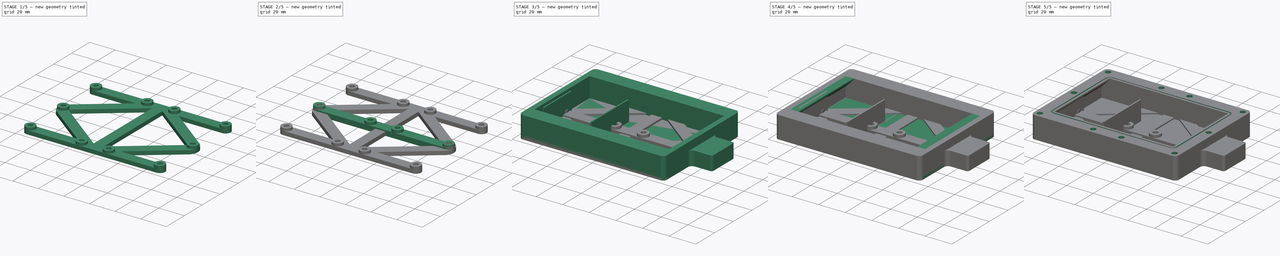
[diagram: build sequence overview — one tinted view per stage of 5, left to right]
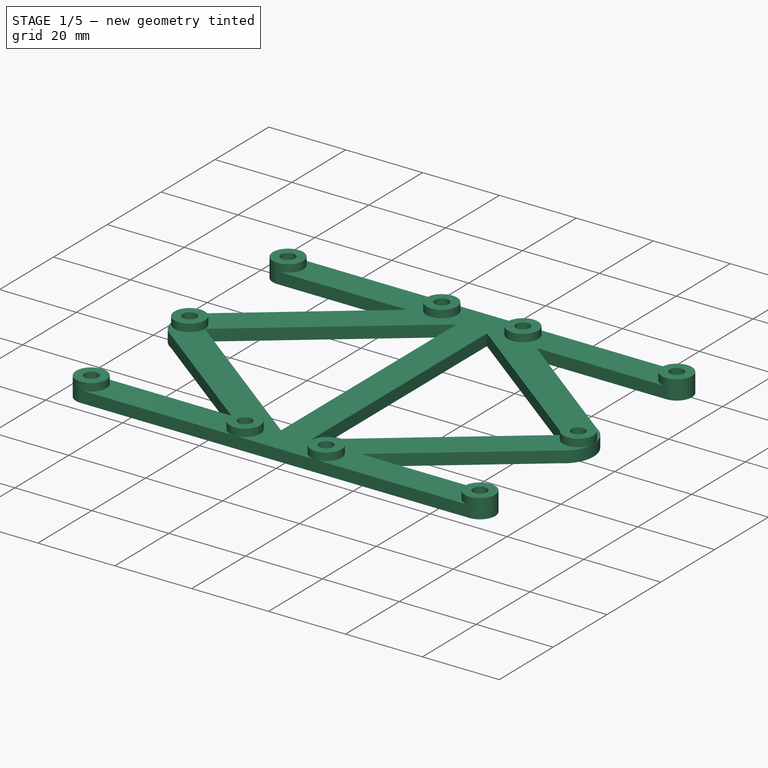
[diagram: stage 1 of 5 — iso view after this stage's code; geometry added in this stage tinted green]
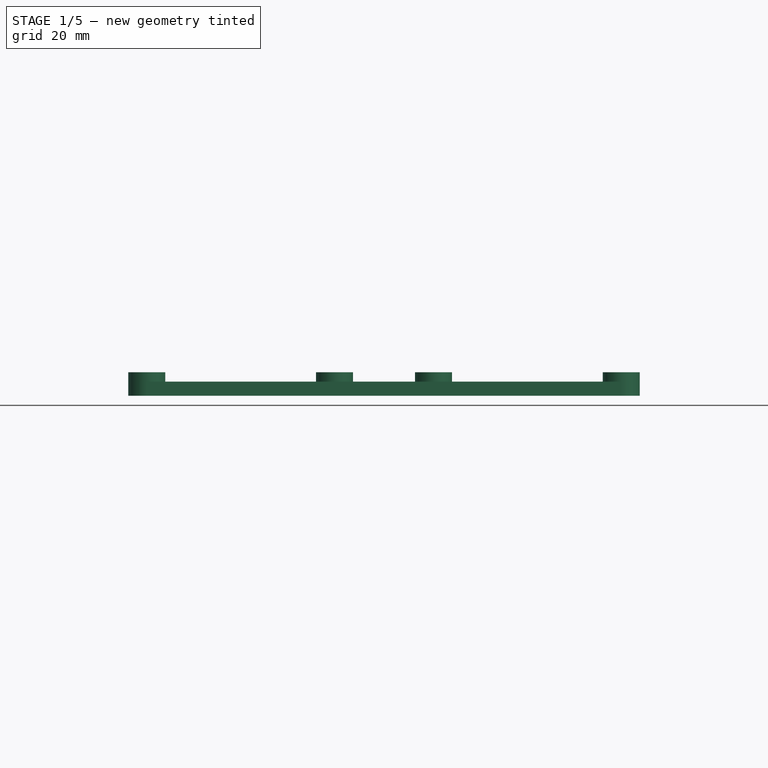
[diagram: stage 1 of 5 — front view after this stage's code; geometry added in this stage tinted green]
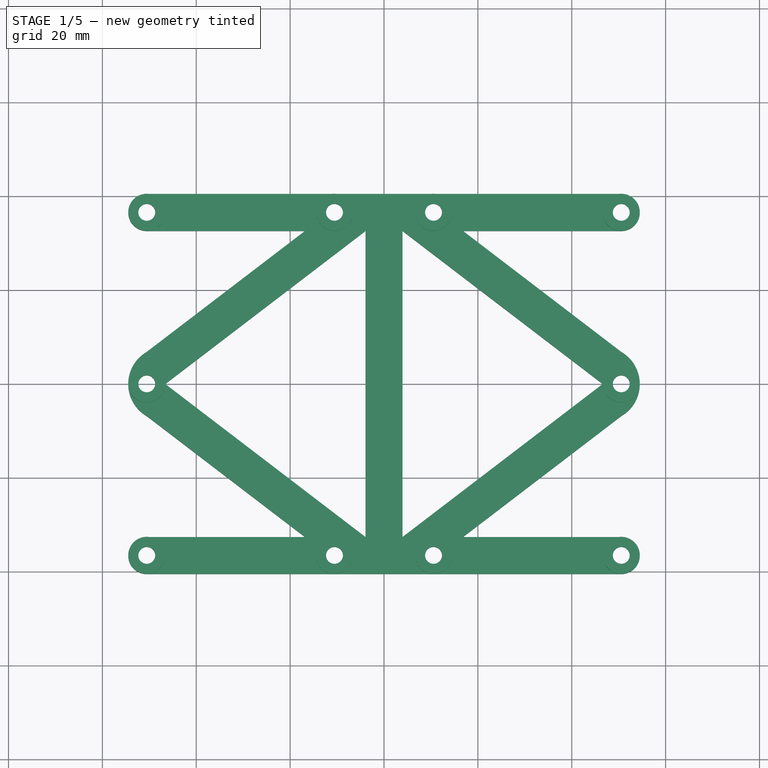
[diagram: stage 1 of 5 — top view after this stage's code; geometry added in this stage tinted green]
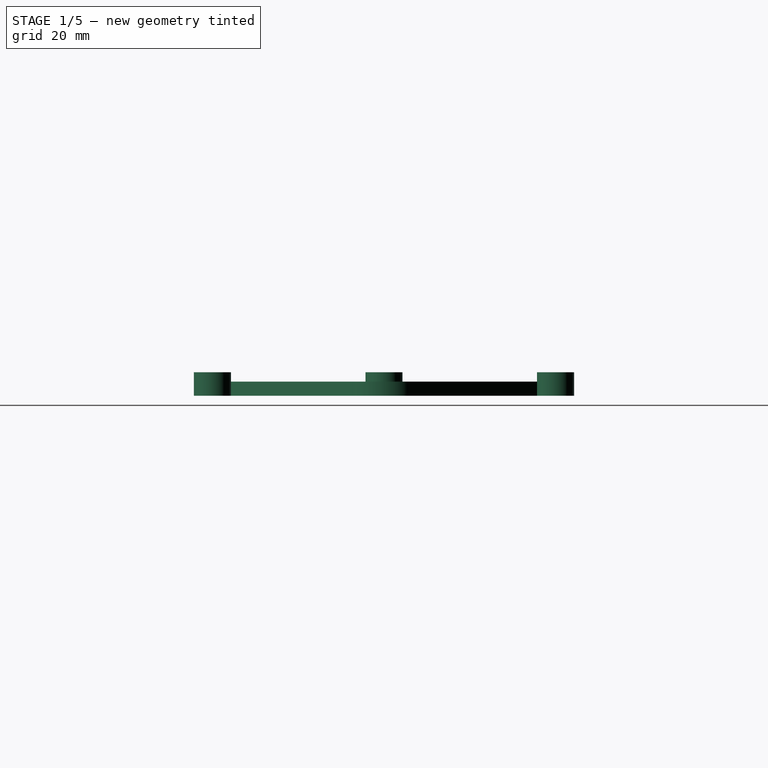
[diagram: stage 1 of 5 — right view after this stage's code; geometry added in this stage tinted green]
FCSTD DOCUMENT  (FreeCAD 0.21R33771 (Git))
Label: RAKTracker-GPS-V2
License: All rights reserved
LicenseURL: http://en.wikipedia.org/wiki/All_rights_reserved
objects: Sketcher::SketchObject×14, PartDesign::Pad×9, PartDesign::Pocket×4, PartDesign::Body×4, PartDesign::Hole×3, PartDesign::Plane×2, Spreadsheet::Sheet×1
note: 52 computed .brp shape members not serialized (recipe doc carries the construction recipe); baked Part::Feature solids carry a one-line shape summary decoded from their .brp

FEATURE [PartDesign::Body] Body002  label="Brace"
  Group = -> [Sketch012,Pad006,Sketch013,Pad007,Hole001]
  Origin = -> Origin002
  Placement = pos=(0,37,46) rot=(1,0,0;3.14159rad)
  Tip = -> Hole001
FEATURE [Sketcher::SketchObject] Sketch014  label="FullBraceBaseSketch"
  FullyConstrained = true
  MapMode = 5
  Support = -> [XY_Plane003]
  expr: Constraints[25] = 2 * (<<RAKSheet>>.BoxLidMainScrewholeDia / 2 + <<RAKSheet>>.WallThicknessNexttoLidMainHoles)
  expr: Constraints[39] = 2 * (<<RAKSheet>>.BoxLidMainScrewholeDia / 2 + <<RAKSheet>>.WallThicknessNexttoLidMainHoles)
  expr: Constraints[52] = 2 * (<<RAKSheet>>.BoxLidMainScrewholeDia / 2 + <<RAKSheet>>.WallThicknessNexttoLidMainHoles)
  expr: Constraints[54] = <<RAKSheet>>.BoxLidMainScrewholeDia / 2 + <<RAKSheet>>.WallThicknessNexttoLidMainHoles
  expr: Constraints[63] = 2 * (<<RAKSheet>>.BoxLidMainScrewholeDia / 2 + <<RAKSheet>>.WallThicknessNexttoLidMainHoles)
  expr: Constraints[64] = <<RAKSheet>>.BoxLidMainScrewholeDia / 2 + <<RAKSheet>>.WallThicknessNexttoLidMainHoles
  expr: Constraints[66] = 2 * (<<RAKSheet>>.BoxLidMainScrewholeDia / 2 + <<RAKSheet>>.WallThicknessNexttoLidMainHoles)
  expr: Constraints[67] = 2 * (<<RAKSheet>>.BoxLidMainScrewholeDia / 2 + <<RAKSheet>>.WallThicknessNexttoLidMainHoles)
  expr: Constraints[71] = 2 * (<<RAKSheet>>.BoxLidMainScrewholeDia / 2 + <<RAKSheet>>.WallThicknessNexttoLidMainHoles)
  expr: Constraints[8] = <<RAKSheet>>.BoxLength
  expr: Constraints[9] = <<RAKSheet>>.BoxWidth
  sketch-geometry (26):
    g0: LineSegment StartX=-54.5 StartY=40.5 StartZ=0 EndX=54.5 EndY=40.5 EndZ=0
    g1: LineSegment StartX=54.5 StartY=40.5 StartZ=0 EndX=54.5 EndY=-40.5 EndZ=0
    g2: LineSegment StartX=54.5 StartY=-40.5 StartZ=0 EndX=-54.5 EndY=-40.5 EndZ=0
    g3: LineSegment StartX=-54.5 StartY=-40.5 StartZ=0 EndX=-54.5 EndY=40.5 EndZ=0
    g4: LineSegment StartX=-50.55 StartY=40.5 StartZ=0 EndX=50.55 EndY=40.5 EndZ=0
    g5: LineSegment StartX=50.55 StartY=-40.5 StartZ=0 EndX=-50.55 EndY=-40.5 EndZ=0
    g6: LineSegment StartX=-16.8507 StartY=-32.6 StartZ=0 EndX=-50.55 EndY=-6.8416 EndZ=0
    g7: LineSegment StartX=-50.55 StartY=6.8416 StartZ=0 EndX=-16.8507 EndY=32.6 EndZ=0
    g8: LineSegment StartX=-46.6 StartY=0 StartZ=0 EndX=-3.95 EndY=32.6 EndZ=0
    g9: LineSegment StartX=-3.95 StartY=-32.6 StartZ=0 EndX=-46.6 EndY=0 EndZ=0
    g10: ArcOfCircle CenterX=-46.6 CenterY=0 CenterZ=0 NormalX=0 NormalY=0 NormalZ=1 AngleXU=0 Radius=7.9 StartAngle=2.0944 EndAngle=4.18879
    g11: LineSegment StartX=-50.55 StartY=32.6 StartZ=0 EndX=-16.8507 EndY=32.6 EndZ=0
    g12: LineSegment StartX=16.8507 StartY=32.6 StartZ=0 EndX=50.55 EndY=32.6 EndZ=0
    g13: LineSegment StartX=50.55 StartY=-32.6 StartZ=0 EndX=16.8507 EndY=-32.6 EndZ=0
    g14: LineSegment StartX=-16.8507 StartY=-32.6 StartZ=0 EndX=-50.55 EndY=-32.6 EndZ=0
    g15: ArcOfCircle CenterX=-50.55 CenterY=36.55 CenterZ=0 NormalX=0 NormalY=0 NormalZ=1 AngleXU=0 Radius=3.95 StartAngle=1.5708 EndAngle=4.71239
    g16: ArcOfCircle CenterX=50.55 CenterY=36.55 CenterZ=0 NormalX=0 NormalY=0 NormalZ=1 AngleXU=0 Radius=3.95 StartAngle=4.71239 EndAngle=7.85398
    g17: ArcOfCircle CenterX=50.55 CenterY=-36.55 CenterZ=0 NormalX=0 NormalY=0 NormalZ=1 AngleXU=0 Radius=3.95 StartAngle=4.71239 EndAngle=7.85398
    g18: ArcOfCircle CenterX=-50.55 CenterY=-36.55 CenterZ=0 NormalX=0 NormalY=0 NormalZ=1 AngleXU=0 Radius=3.95 StartAngle=1.5708 EndAngle=4.71239
    g19: LineSegment StartX=3.95 StartY=32.6 StartZ=0 EndX=46.6 EndY=0 EndZ=0
    g20: LineSegment StartX=46.6 StartY=0 StartZ=0 EndX=3.95 EndY=-32.6 EndZ=0
    g21: LineSegment StartX=16.8507 StartY=-32.6 StartZ=0 EndX=50.55 EndY=-6.8416 EndZ=0
    g22: LineSegment StartX=16.8507 StartY=32.6 StartZ=0 EndX=50.55 EndY=6.8416 EndZ=0
    g23: ArcOfCircle CenterX=46.6 CenterY=0 CenterZ=0 NormalX=0 NormalY=0 NormalZ=1 AngleXU=0 Radius=7.9 StartAngle=5.23599 EndAngle=7.33038
    g24: LineSegment StartX=-3.95 StartY=32.6 StartZ=0 EndX=-3.95 EndY=-32.6 EndZ=0
    g25: LineSegment StartX=3.95 StartY=32.6 StartZ=0 EndX=3.95 EndY=-32.6 EndZ=0
  constraints (81):
    c: Coincident(g0,g1)
    c: Coincident(g1,g2)
    c: Coincident(g2,g3)
    c: Coincident(g3,g0)
    c: Horizontal(g0)
    c: Horizontal(g2)
    c: Vertical(g1)
    c: Vertical(g3)
    c: DistanceX(g0,g0) = 109
    c: DistanceY(g3,g3) = 81
    c: Symmetric(g0,g1,g-1)
    c: Horizontal(g4)
    c: Horizontal(g5)
    c: Coincident(g9,g8)
    c: PointOnObject(g8,g-1)
    c: Vertical(g6,g7)
    c: Coincident(g10,g7)
    c: Coincident(g10,g6)
    c: Vertical(g6,g7)
    c: Coincident(g11,g7)
    c: Horizontal(g11)
    c: Horizontal(g12)
    c: Horizontal(g13)
    c: Coincident(g14,g6)
    c: Horizontal(g14)
    c: DistanceY(g12,g4) = 7.9
    c: PointOnObject(g5,g2)
    c: PointOnObject(g4,g0)
    c: Coincident(g15,g4)
    c: Coincident(g15,g11)
    c: Coincident(g16,g4)
    c: Coincident(g16,g12)
    c: Tangent(g16,g1)
    c: Tangent(g15,g3)
    c: Vertical(g4,g16)
    c: Vertical(g16,g12)
    c: Vertical(g4,g15)
    c: Vertical(g15,g11)
    c: Equal(g11,g12)
    c: DistanceY(g5,g13) = 7.9
    c: Coincident(g17,g13)
    c: Coincident(g17,g5)
    c: Tangent(g17,g1)
    c: Coincident(g18,g14)
    c: Coincident(g18,g5)
    c: Tangent(g18,g3)
    c: Vertical(g13,g17)
    c: Vertical(g17,g5)
    c: Vertical(g14,g18)
    c: Vertical(g18,g5)
    c: Tangent(g10,g3)
    c: Coincident(g8,g10)
    c: DistanceX(g2,g8) = 7.9
    c: Parallel(g7,g8)
    c: DistanceX(g2,g6) = 3.95
    c: PointOnObject(g19,g-1)
    c: Coincident(g20,g19)
    c: Coincident(g21,g13)
    c: Coincident(g22,g12)
    c: Coincident(g23,g22)
    c: Coincident(g23,g21)
    c: Tangent(g23,g1)
    c: Vertical(g22,g21)
    c: DistanceX(g19,g1) = 7.9
    c: DistanceX(g21,g1) = 3.95
    c: Coincident(g23,g19)
    c: DistanceY(g11,g4) = 7.9
    c: DistanceY(g5,g14) = 7.9
    c: Vertical(g12,g13)
    c: Vertical(g24)
    c: Vertical(g25)
    c: DistanceX(g24,g25) = 7.9
    c: Equal(g25,g24)
    c: Coincident(g19,g25)
    c: Coincident(g8,g24)
    c: Coincident(g9,g24)
    c: Coincident(g20,g25)
    c: Horizontal(g8,g7)
    c: Horizontal(g7,g19)
    c: Horizontal(g6,g9)
    c: Parallel(g19,g22)
FEATURE [PartDesign::Pad] Pad008  label="FullBraceBase"
  Direction = (0,0,1)
  Length = 3
  Length2 = 10
  Profile = -> Sketch014
  ReferenceAxis = -> Sketch014 [N_Axis]
  Type = 0
FEATURE [Sketcher::SketchObject] Sketch015  label="FullBraceOffsetSketch"
  FullyConstrained = true
  MapMode = 5
  Support = -> [XY_Plane003]
  expr: Constraints[23] = <<RAKSheet>>.StrapHoleDistance
  expr: Constraints[24] = <<RAKSheet>>.StrapHoleDistance
  expr: Constraints[25] = <<RAKSheet>>.BoxLidMainScrewholeDia / 2 + <<RAKSheet>>.WallThicknessNexttoLidMainHoles
  expr: Constraints[26] = <<RAKSheet>>.BoxLidMainScrewholeDia / 2 + <<RAKSheet>>.WallThicknessNexttoLidMainHoles
  expr: Constraints[27] = <<RAKSheet>>.BoxLidMainScrewholeDia / 2 + <<RAKSheet>>.WallThicknessNexttoLidMainHoles
  expr: Constraints[28] = <<RAKSheet>>.BoxLidMainScrewholeDia / 2 + <<RAKSheet>>.WallThicknessNexttoLidMainHoles
  expr: Constraints[37] = 2 * (<<RAKSheet>>.BoxLidMainScrewholeDia / 2 + <<RAKSheet>>.WallThicknessNexttoLidMainHoles)
  expr: Constraints[8] = <<RAKSheet>>.BoxLength
  expr: Constraints[9] = <<RAKSheet>>.BoxWidth
  sketch-geometry (14):
    g0: LineSegment StartX=-54.5 StartY=40.5 StartZ=0 EndX=54.5 EndY=40.5 EndZ=0
    g1: LineSegment StartX=54.5 StartY=40.5 StartZ=0 EndX=54.5 EndY=-40.5 EndZ=0
    g2: LineSegment StartX=54.5 StartY=-40.5 StartZ=0 EndX=-54.5 EndY=-40.5 EndZ=0
    g3: LineSegment StartX=-54.5 StartY=-40.5 StartZ=0 EndX=-54.5 EndY=40.5 EndZ=0
    g4: Circle CenterX=-50.55 CenterY=36.55 CenterZ=0 NormalX=0 NormalY=0 NormalZ=1 AngleXU=0 Radius=3.95
    g5: Circle CenterX=-10.55 CenterY=36.55 CenterZ=0 NormalX=0 NormalY=0 NormalZ=1 AngleXU=0 Radius=3.95
    g6: Circle CenterX=10.55 CenterY=36.55 CenterZ=0 NormalX=0 NormalY=0 NormalZ=1 AngleXU=0 Radius=3.95
    g7: Circle CenterX=50.55 CenterY=36.55 CenterZ=0 NormalX=0 NormalY=0 NormalZ=1 AngleXU=0 Radius=3.95
    g8: Circle CenterX=50.55 CenterY=-36.55 CenterZ=0 NormalX=0 NormalY=0 NormalZ=1 AngleXU=0 Radius=3.95
    g9: Circle CenterX=10.55 CenterY=-36.55 CenterZ=0 NormalX=0 NormalY=0 NormalZ=1 AngleXU=0 Radius=3.95
    g10: Circle CenterX=-10.55 CenterY=-36.55 CenterZ=0 NormalX=0 NormalY=0 NormalZ=1 AngleXU=0 Radius=3.95
    g11: Circle CenterX=-50.55 CenterY=-36.55 CenterZ=0 NormalX=0 NormalY=0 NormalZ=1 AngleXU=0 Radius=3.95
    g12: Circle CenterX=-50.55 CenterY=0 CenterZ=0 NormalX=0 NormalY=0 NormalZ=1 AngleXU=0 Radius=3.95
    g13: Circle CenterX=50.55 CenterY=0 CenterZ=0 NormalX=0 NormalY=0 NormalZ=1 AngleXU=0 Radius=3.95
  constraints (35):
    c: Coincident(g0,g1)
    c: Coincident(g1,g2)
    c: Coincident(g2,g3)
    c: Coincident(g3,g0)
    c: Horizontal(g0)
    c: Horizontal(g2)
    c: Vertical(g1)
    c: Vertical(g3)
    c: DistanceX(g0,g0) = 109
    c: DistanceY(g3,g3) = 81
    c: Symmetric(g0,g1,g-1)
    c: PointOnObject(g12,g-1)
    c: Vertical(g12,g11)
    c: Vertical(g11,g4)
    c: Vertical(g5,g10)
    c: Vertical(g6,g9)
    c: Vertical(g7,g8)
    c: Horizontal(g7,g6)
    c: Horizontal(g6,g5)
    c: Horizontal(g5,g4)
    c: Horizontal(g11,g10)
    c: Horizontal(g10,g9)
    c: Horizontal(g9,g8)
    c: DistanceX(g6,g7) = 40
    c: DistanceX(g4,g5) = 40
    c: DistanceY(g4,g0) = 3.95
    c: DistanceX(g0,g4) = 3.95
    c: DistanceX(g7,g0) = 3.95
    c: DistanceY(g1,g8) = 3.95
    c: Equal(g8, g9-g12) x4
    c: Equal(g8, g4-g7) x4
    c: Diameter(g8) = 7.9
    c: PointOnObject(g13,g-1)
    c: Equal(g13,g8)
    c: Vertical(g13,g7)
FEATURE [PartDesign::Pad] Pad009  label="FullBraceOffSets"
  BaseFeature = -> Pad008
  Direction = (0,0,1)
  Length = 5
  Length2 = 10
  Profile = -> Sketch015
  ReferenceAxis = -> Sketch015 [N_Axis]
  Type = 0
  expr: Length = <<RAKSheet>>.StrapThickness + <<FullBraceBase>>.Length
FEATURE [PartDesign::Hole] Hole002  label="FullBraceScrewHoles"
  BaseFeature = -> Pad009
  CustomThreadClearance = 0
  Depth = 25
  DepthType = 0
  Diameter = 3.6
  DrillForDepth = false
  DrillPoint = 1
  DrillPointAngle = 118
  HoleCutCountersinkAngle = 90
  HoleCutCustomValues = false
  HoleCutDepth = 0
  HoleCutDiameter = 6.7
  HoleCutType = 5
  ModelThread = false
  Profile = -> Sketch015
  Reversed = true
  Tapered = false
  TaperedAngle = 90
  ThreadClass = 0
  ThreadDepth = 25
  ThreadDepthType = 0
  ThreadDirection = 0
  ThreadFit = 2
  ThreadSize = 9
  ThreadType = 1
  Threaded = false
  UseCustomThreadClearance = false
FEATURE [PartDesign::Body] Body003  label="FullBrace"
  Group = -> [Sketch014,Pad008,Sketch015,Pad009,Hole002]
  Origin = -> Origin003
  Placement = pos=(0,0,38) rot=(0,0,1;0rad)
  Tip = -> Hole002
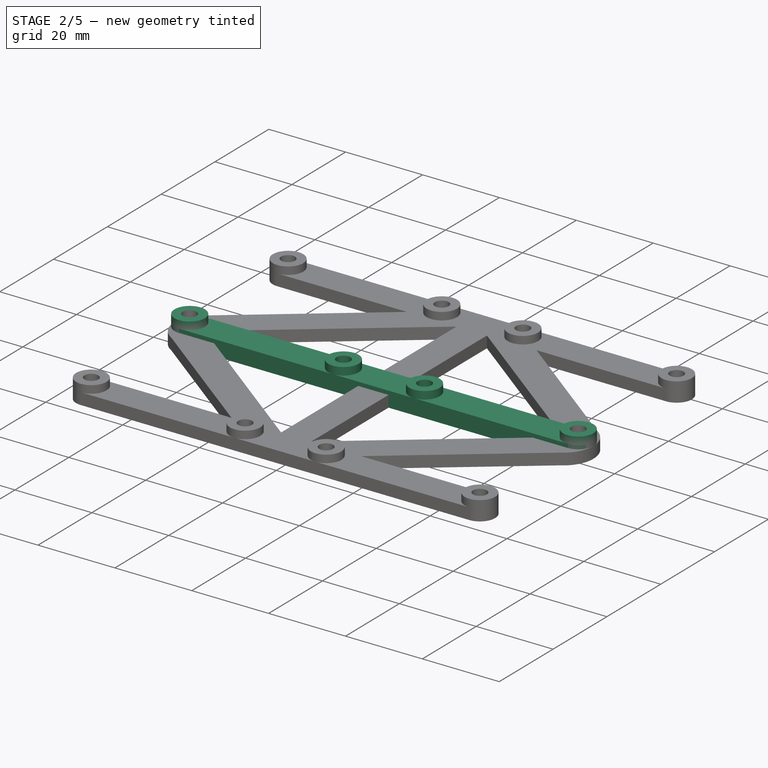
[diagram: stage 2 of 5 — iso view after this stage's code; geometry added in this stage tinted green]
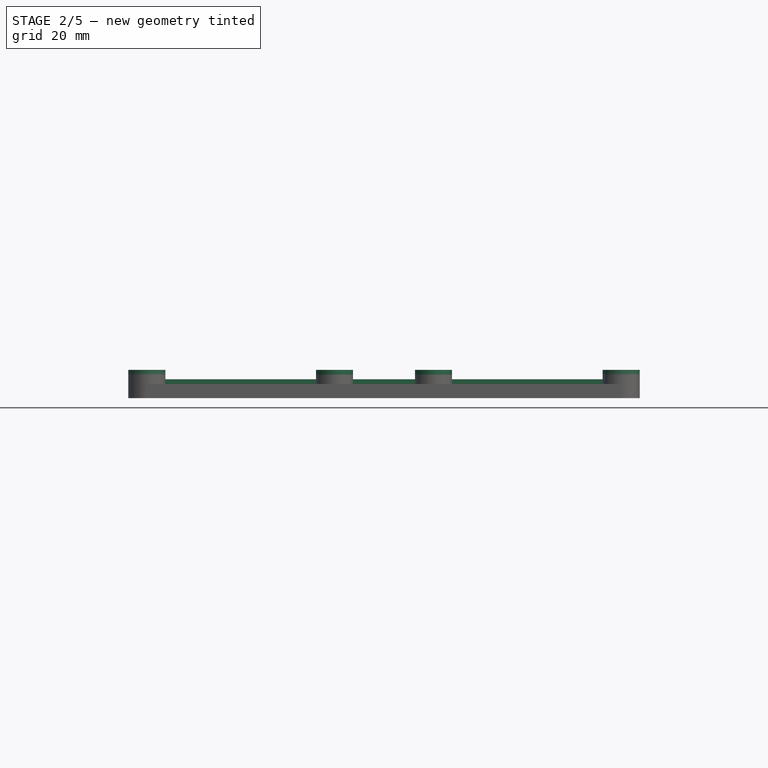
[diagram: stage 2 of 5 — front view after this stage's code; geometry added in this stage tinted green]
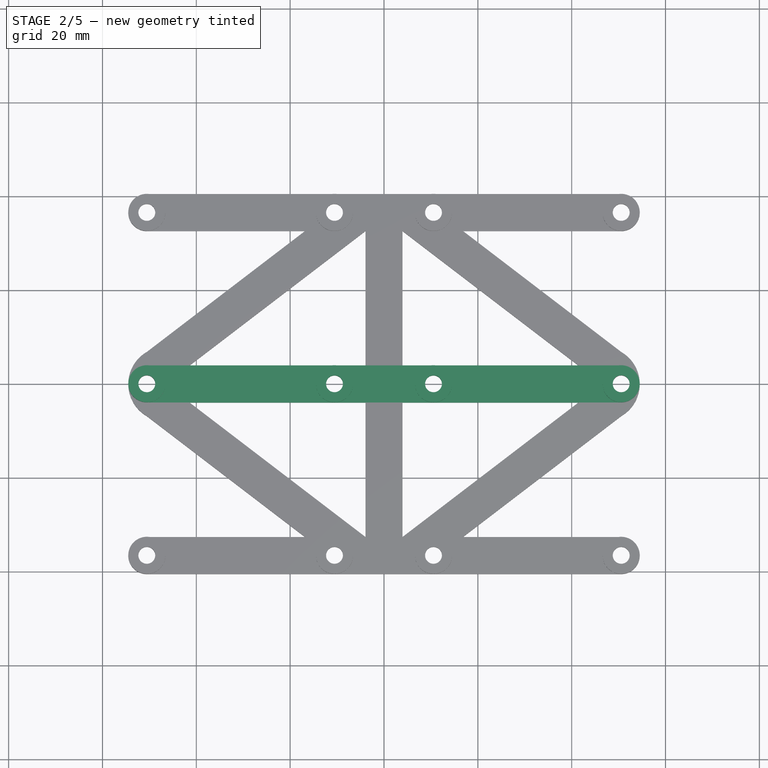
[diagram: stage 2 of 5 — top view after this stage's code; geometry added in this stage tinted green]
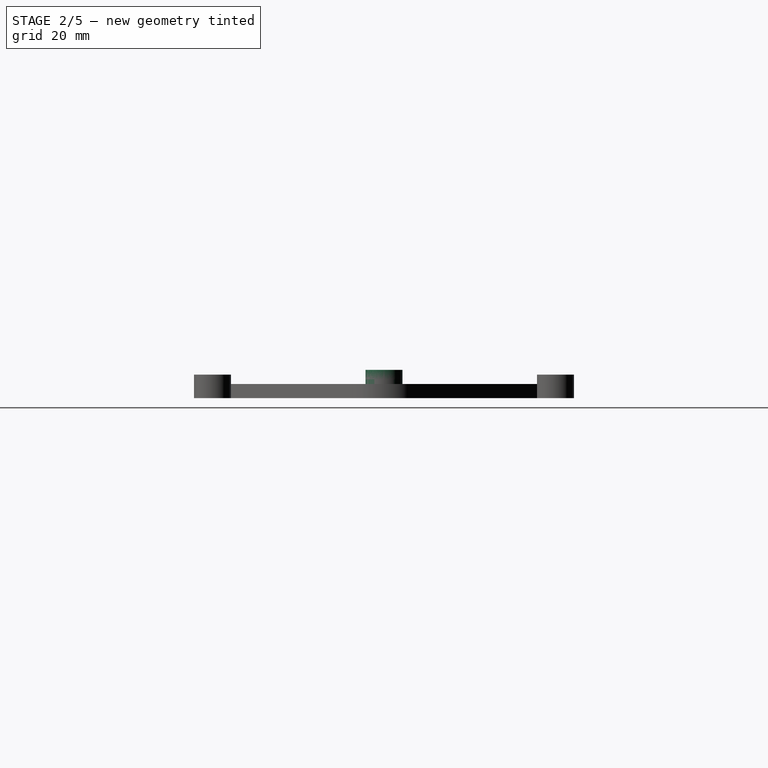
[diagram: stage 2 of 5 — right view after this stage's code; geometry added in this stage tinted green]
FEATURE [PartDesign::Body] Body  label="Box"
  Group = -> [Sketch,Sketch001,Pad,Pad001,DatumPlane,Sketch002,Pocket,DatumPlane001,Sketch003,Pocket001,Sketch004,Sketch005,Pad002,Sketch006,Sketch010,Pad005,Pocket003,Pocket002]
  Origin = -> Origin
  Tip = -> Pocket002
FEATURE [Sketcher::SketchObject] Sketch012  label="BraceBaseSketch"
  FullyConstrained = true
  MapMode = 5
  Support = -> [XY_Plane002]
  expr: Constraints[20] = 2 * (<<RAKSheet>>.BoxLidMainScrewholeDia / 2 + <<RAKSheet>>.WallThicknessNexttoLidMainHoles)
  expr: Constraints[8] = <<RAKSheet>>.BoxLength
  sketch-geometry (8):
    g0: LineSegment StartX=-54.5 StartY=7.5 StartZ=0 EndX=54.5 EndY=7.5 EndZ=0
    g1: LineSegment StartX=54.5 StartY=7.5 StartZ=0 EndX=54.5 EndY=-7.5 EndZ=0
    g2: LineSegment StartX=54.5 StartY=-7.5 StartZ=0 EndX=-54.5 EndY=-7.5 EndZ=0
    g3: LineSegment StartX=-54.5 StartY=-7.5 StartZ=0 EndX=-54.5 EndY=7.5 EndZ=0
    g4: ArcOfCircle CenterX=-50.55 CenterY=0 CenterZ=0 NormalX=0 NormalY=0 NormalZ=1 AngleXU=0 Radius=3.95 StartAngle=1.5708 EndAngle=4.71239
    g5: ArcOfCircle CenterX=50.55 CenterY=0 CenterZ=0 NormalX=0 NormalY=0 NormalZ=1 AngleXU=0 Radius=3.95 StartAngle=4.71239 EndAngle=7.85398
    g6: LineSegment StartX=-50.55 StartY=-3.95 StartZ=0 EndX=50.55 EndY=-3.95 EndZ=0
    g7: LineSegment StartX=50.55 StartY=3.95 StartZ=0 EndX=-50.55 EndY=3.95 EndZ=0
  constraints (21):
    c: Coincident(g0,g1)
    c: Coincident(g1,g2)
    c: Coincident(g2,g3)
    c: Coincident(g3,g0)
    c: Horizontal(g0)
    c: Horizontal(g2)
    c: Vertical(g1)
    c: Vertical(g3)
    c: DistanceX(g0,g0) = 109
    c: Symmetric(g0,g1,g-1)
    c: DistanceY(g3,g3) = 15
    c: Tangent(g4,g6) = -1.5708
    c: Tangent(g6,g5) = -1.5708
    c: Tangent(g5,g7) = -1.5708
    c: Tangent(g7,g4) = -1.5708
    c: Equal(g4,g5)
    c: PointOnObject(g4,g-1)
    c: PointOnObject(g5,g-1)
    c: Tangent(g4,g3)
    c: Tangent(g5,g1)
    c: DistanceY(g4,g4) = 7.9
FEATURE [PartDesign::Pad] Pad006  label="BraceBase"
  Direction = (0,0,1)
  Length = 4
  Length2 = 10
  Profile = -> Sketch012
  ReferenceAxis = -> Sketch012 [N_Axis]
  Type = 0
FEATURE [Sketcher::SketchObject] Sketch013  label="BraceStandoffSketch"
  FullyConstrained = true
  MapMode = 5
  Support = -> [XY_Plane002]
  expr: Constraints[15] = <<RAKSheet>>.StrapHoleDistance
  expr: Constraints[16] = <<RAKSheet>>.StrapHoleDistance
  expr: Constraints[20] = 2 * (<<RAKSheet>>.BoxLidMainScrewholeDia / 2 + <<RAKSheet>>.WallThicknessNexttoLidMainHoles)
  expr: Constraints[21] = <<RAKSheet>>.BoxLidMainScrewholeDia / 2 + <<RAKSheet>>.WallThicknessNexttoLidMainHoles
  expr: Constraints[22] = <<RAKSheet>>.BoxLidMainScrewholeDia / 2 + <<RAKSheet>>.WallThicknessNexttoLidMainHoles
  expr: Constraints[8] = <<RAKSheet>>.BoxLength
  sketch-geometry (8):
    g0: LineSegment StartX=-54.5 StartY=7.5 StartZ=0 EndX=54.5 EndY=7.5 EndZ=0
    g1: LineSegment StartX=54.5 StartY=7.5 StartZ=0 EndX=54.5 EndY=-7.5 EndZ=0
    g2: LineSegment StartX=54.5 StartY=-7.5 StartZ=0 EndX=-54.5 EndY=-7.5 EndZ=0
    g3: LineSegment StartX=-54.5 StartY=-7.5 StartZ=0 EndX=-54.5 EndY=7.5 EndZ=0
    g4: Circle CenterX=-50.55 CenterY=0 CenterZ=0 NormalX=0 NormalY=0 NormalZ=1 AngleXU=0 Radius=3.95
    g5: Circle CenterX=-10.55 CenterY=0 CenterZ=0 NormalX=0 NormalY=0 NormalZ=1 AngleXU=0 Radius=3.95
    g6: Circle CenterX=10.55 CenterY=0 CenterZ=0 NormalX=0 NormalY=0 NormalZ=1 AngleXU=0 Radius=3.95
    g7: Circle CenterX=50.55 CenterY=0 CenterZ=0 NormalX=0 NormalY=0 NormalZ=1 AngleXU=0 Radius=3.95
  constraints (23):
    c: Coincident(g0,g1)
    c: Coincident(g1,g2)
    c: Coincident(g2,g3)
    c: Coincident(g3,g0)
    c: Horizontal(g0)
    c: Horizontal(g2)
    c: Vertical(g1)
    c: Vertical(g3)
    c: DistanceX(g0,g0) = 109
    c: Symmetric(g0,g1,g-1)
    c: DistanceY(g3,g3) = 15
    c: PointOnObject(g4,g-1)
    c: PointOnObject(g5,g-1)
    c: PointOnObject(g6,g-1)
    c: PointOnObject(g7,g-1)
    c: DistanceX(g4,g5) = 40
    c: DistanceX(g6,g7) = 40
    c: Equal(g4,g5)
    c: Equal(g4,g6)
    c: Equal(g4,g7)
    c: Diameter(g4) = 7.9
    c: DistanceX(g0,g4) = 3.95
    c: DistanceX(g7,g0) = 3.95
FEATURE [PartDesign::Pad] Pad007  label="BraceStandoff"
  BaseFeature = -> Pad006
  Direction = (0,0,1)
  Length = 6
  Length2 = 10
  Profile = -> Sketch013
  ReferenceAxis = -> Sketch013 [N_Axis]
  Type = 0
  expr: Length = <<BraceBase>>.Length + <<RAKSheet>>.StrapThickness
FEATURE [PartDesign::Hole] Hole001  label="BraceScrewHoles"
  BaseFeature = -> Pad007
  CustomThreadClearance = 0
  Depth = 25
  DepthType = 0
  Diameter = 3.6
  DrillForDepth = false
  DrillPoint = 1
  DrillPointAngle = 118
  HoleCutCountersinkAngle = 90
  HoleCutCustomValues = false
  HoleCutDepth = 0
  HoleCutDiameter = 6.7
  HoleCutType = 5
  ModelThread = false
  Profile = -> Sketch013
  Reversed = true
  Tapered = false
  TaperedAngle = 90
  ThreadClass = 0
  ThreadDepth = 25
  ThreadDepthType = 0
  ThreadDirection = 0
  ThreadFit = 2
  ThreadSize = 9
  ThreadType = 1
  Threaded = false
  UseCustomThreadClearance = false
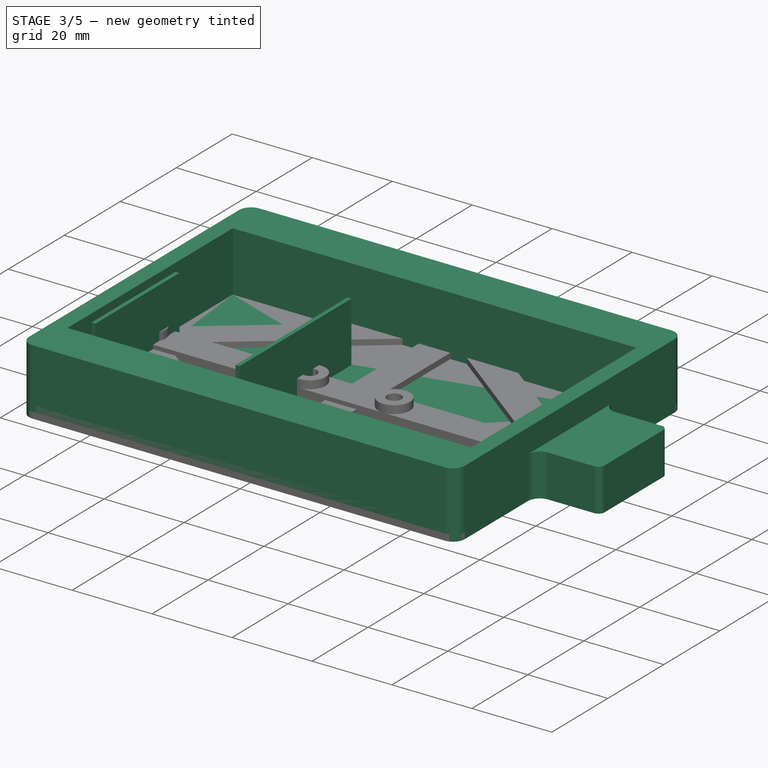
[diagram: stage 3 of 5 — iso view after this stage's code; geometry added in this stage tinted green]
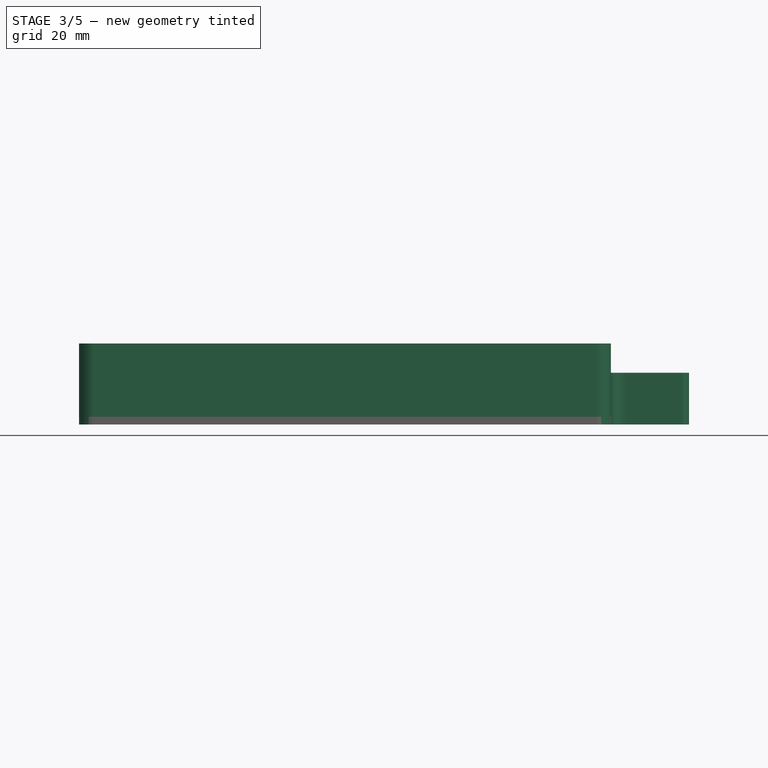
[diagram: stage 3 of 5 — front view after this stage's code; geometry added in this stage tinted green]
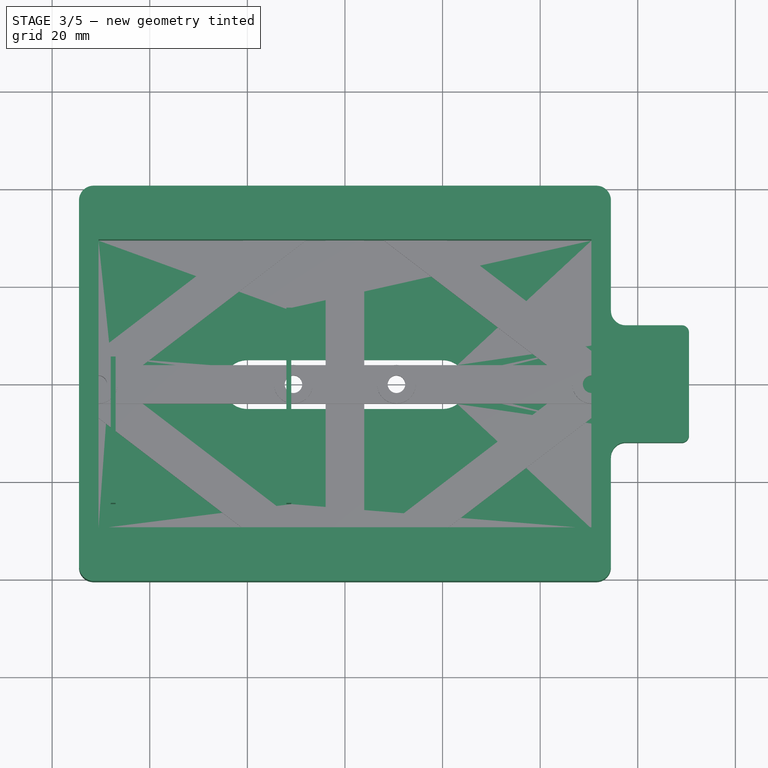
[diagram: stage 3 of 5 — top view after this stage's code; geometry added in this stage tinted green]
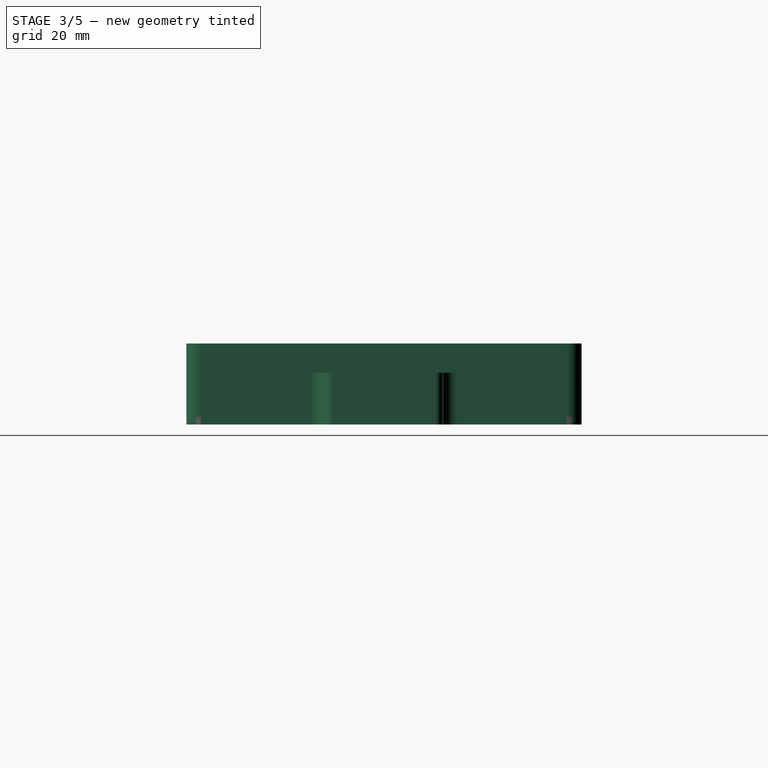
[diagram: stage 3 of 5 — right view after this stage's code; geometry added in this stage tinted green]
FEATURE [Spreadsheet::Sheet] Spreadsheet  label="RAKSheet"
  cells = A1='Box Length; B1(BoxLength)==109 mm; D1='GPSWidth and Height; E1(GPSWidthAndLength)==16 mm; H1='Brass Insert DIa; I1==3.9 mm; A2='Box Width; B2(BoxWidth)==81 mm; D2='GPSHeight; E2(GPSHeight)==8 mm; H2='Brass Insert Depth; I2==6.5 mm; A3='Box Height; B3(BoxHeight)==B4 + B6; H3='Brass Insert Outer minimum size; I3==7.1 mm; A4='Box Inner Depth; B4(BoxInnerDepth)==15 mm; H4='Brass Insert min height; I4==6.7 mm; D5='Strap hole distance; E5(StrapHoleDistance)==40 mm; A6='Box Top thickness (solar panel mount point); B6(BoxTopThickness)==1.6 mm; D6='Strap thickness; E6(StrapThickness)==2 mm; A7='Box Corner Radius; B7(BoxCornerRadius)==3 mm; A8='Box GPS Corner Radius; B8(BoxGPSCornerRadius)==1.5 mm; D8='Lora Antenna Height; E8(LoraAntHeight)==2.5 mm; D9='Lora Antenna Length; E9==60 mm; A10='Box Wall Thickness with along Length; B10(BoxWallThicknessAlongLength)==11 mm; D10='Lora Anttenna Width; E10==7.5 mm; A11='Box Wall Thickness elsewhere; B11(BoxWallThickness)==4 mm; H12='TODO: ; A13='Box Lid Main ScrewHole dia; B13(BoxLidMainScrewholeDia)==I1; A14='Box Lid Main Screwhole Depth; B14(BoxLidMainScrewholeDepth)==I2; D14='NEW Battery!!; H14='Extra screws for lid (side); A15='Box Lid Small screwhole width; B15(BoxLidSmallHoleWidth)==I3; D15='BatteryWidth; E15(BatteryWidth)==35 mm; H15='Lid itself; A16='Box Lid Small screwhole dia; B16(BoxLidSmallHoleDia)==I1; D16='BatteryLength; E16(BatteryLength)==59 mm; H16='Braces; A17='Box Lid Small screwhole height; B17(BoxLidSmallHoleHeight)==I4; D17='BatteryDepth; E17==9.5 mm; A18='Box Lid Small screwhole Length; B18(BoxLidSmallHoleLength)==6 mm; A19='Wall thickness next to lid main holes; B19(WallThicknessNexttoLidMainHoles)==2 mm; A20='Wall thickness internal walls; B20(WallThicknessInternalWalls)==1 mm; D20='SealWidth; E20(SealWidth)==1 mm; D21='SealDepth; E21(SealDepth)==0.6 mm; A22='Lid height; B22(LidHeight)==2 mm; D22='Seal Corner Radius; E22(SealCornerRadius)==2.5 mm; A23='Lid Main ScrewHole dia; B23(LidMainScrewHoleDia)==3.5 mm; A30='PCB Width; B30(PCBWidth)==31 mm; A31='PCB Length; B31(PCBLength)==37 mm; C31='Actually 36, but we want some space for a cable; A32='PCB Height; B32(PCBHeight)==14 mm; A33='PCB Mount Hole Dia; B33(PCBMountHoleDia)==I1; A34='PCB Mount Hole Distance; B34(PCBMountHoleDistance)==22 mm; A35='PCB Mount Centre from Edge; B35(PCBMountHoleFromEdge)==15 mm; A36='PCB Mount Height; B36(PCBMountHeight)==4.5 mm; A37='PCB Mount Dia; B37(PCBMountDIa)==I3
FEATURE [Sketcher::SketchObject] Sketch  label="WallsSketch"
  FullyConstrained = true
  MapMode = 5
  Support = -> [XY_Plane]
  expr: Constraints[24] = <<RAKSheet>>.BoxGPSCornerRadius
  expr: Constraints[25] = <<RAKSheet>>.GPSWidthAndLength + <<RAKSheet>>.BoxWallThickness * 2
  expr: Constraints[26] = <<RAKSheet>>.BoxWidth
  expr: Constraints[28] = <<RAKSheet>>.BoxCornerRadius
  expr: Constraints[29] = <<RAKSheet>>.BoxCornerRadius
  expr: Constraints[30] = <<RAKSheet>>.BoxCornerRadius
  expr: Constraints[31] = <<RAKSheet>>.BoxCornerRadius
  expr: Constraints[33] = <<RAKSheet>>.BoxLength
  expr: Constraints[35] = <<RAKSheet>>.BoxCornerRadius
  expr: Constraints[45] = <<RAKSheet>>.BoxWallThickness
  expr: Constraints[46] = <<RAKSheet>>.BoxWallThicknessAlongLength
  expr: Constraints[47] = <<RAKSheet>>.GPSWidthAndLength + <<RAKSheet>>.BoxWallThickness
  expr: Constraints[63] = <<RAKSheet>>.WallThicknessInternalWalls
  expr: Constraints[64] = <<RAKSheet>>.WallThicknessInternalWalls
  expr: Constraints[65] = Spreadsheet.LoraAntHeight
  expr: Constraints[66] = <<RAKSheet>>.BatteryWidth
  expr: Constraints[67] = <<RAKSheet>>.BatteryWidth
  sketch-geometry (28):
    g0: LineSegment StartX=-51.5 StartY=40.5 StartZ=0 EndX=51.5 EndY=40.5 EndZ=0
    g1: LineSegment StartX=51.5 StartY=-40.5 StartZ=0 EndX=-51.5 EndY=-40.5 EndZ=0
    g2: LineSegment StartX=-54.5 StartY=-37.5 StartZ=0 EndX=-54.5 EndY=37.5 EndZ=0
    g3: ArcOfCircle CenterX=-51.5 CenterY=37.5 CenterZ=0 NormalX=0 NormalY=0 NormalZ=1 AngleXU=0 Radius=3 StartAngle=1.5708 EndAngle=3.14159
    g4: ArcOfCircle CenterX=51.5 CenterY=37.5 CenterZ=0 NormalX=0 NormalY=0 NormalZ=1 AngleXU=0 Radius=3 StartAngle=8e-16 EndAngle=1.5708
    g5: ArcOfCircle CenterX=51.5 CenterY=-37.5 CenterZ=0 NormalX=0 NormalY=0 NormalZ=1 AngleXU=0 Radius=3 StartAngle=4.71239 EndAngle=6.28319
    g6: ArcOfCircle CenterX=-51.5 CenterY=-37.5 CenterZ=0 NormalX=0 NormalY=0 NormalZ=1 AngleXU=0 Radius=3 StartAngle=3.14159 EndAngle=4.71239
    g7: LineSegment StartX=54.5 StartY=37.5 StartZ=0 EndX=54.5 EndY=15 EndZ=0
    g8: LineSegment StartX=54.5 StartY=-15 StartZ=0 EndX=54.5 EndY=-37.5 EndZ=0
    g9: LineSegment StartX=69 StartY=-12 StartZ=0 EndX=57.5 EndY=-12 EndZ=0
    g10: LineSegment StartX=57.5 StartY=12 StartZ=0 EndX=69 EndY=12 EndZ=0
    g11: LineSegment StartX=70.5 StartY=10.5 StartZ=0 EndX=70.5 EndY=-10.5 EndZ=0
    g12: ArcOfCircle CenterX=57.5 CenterY=15 CenterZ=0 NormalX=0 NormalY=0 NormalZ=1 AngleXU=0 Radius=3 StartAngle=3.14159 EndAngle=4.71239
    g13: ArcOfCircle CenterX=57.5 CenterY=-15 CenterZ=0 NormalX=0 NormalY=0 NormalZ=1 AngleXU=0 Radius=3 StartAngle=1.5708 EndAngle=3.14159
    g14: ArcOfCircle CenterX=69 CenterY=10.5 CenterZ=0 NormalX=0 NormalY=0 NormalZ=1 AngleXU=0 Radius=1.5 StartAngle=0 EndAngle=1.5708
    g15: ArcOfCircle CenterX=69 CenterY=-10.5 CenterZ=0 NormalX=0 NormalY=0 NormalZ=1 AngleXU=0 Radius=1.5 StartAngle=4.71239 EndAngle=6.28319
    g16: LineSegment StartX=-50.5 StartY=29.5 StartZ=0 EndX=50.5 EndY=29.5 EndZ=0
    g17: LineSegment StartX=50.5 StartY=29.5 StartZ=0 EndX=50.5 EndY=-29.5 EndZ=0
    g18: LineSegment StartX=50.5 StartY=-29.5 StartZ=0 EndX=-50.5 EndY=-29.5 EndZ=0
    g19: LineSegment StartX=-50.5 StartY=-29.5 StartZ=0 EndX=-50.5 EndY=29.5 EndZ=0
    g20: LineSegment StartX=-47 StartY=-24.5 StartZ=0 EndX=-48 EndY=-24.5 EndZ=0
    g21: LineSegment StartX=-48 StartY=-24.5 StartZ=0 EndX=-48 EndY=5.5 EndZ=0
    g22: LineSegment StartX=-12 StartY=15.5 StartZ=0 EndX=-11 EndY=15.5 EndZ=0
    g23: LineSegment StartX=-11 StartY=15.5 StartZ=0 EndX=-11 EndY=-24.5 EndZ=0
    g24: LineSegment StartX=-11 StartY=-24.5 StartZ=0 EndX=-12 EndY=-24.5 EndZ=0
    g25: LineSegment StartX=-12 StartY=-24.5 StartZ=0 EndX=-12 EndY=15.5 EndZ=0
    g26: LineSegment StartX=-47 StartY=5.5 StartZ=0 EndX=-47 EndY=-24.5 EndZ=0
    g27: LineSegment StartX=-48 StartY=5.5 StartZ=0 EndX=-47 EndY=5.5 EndZ=0
  constraints (74):
    c: Horizontal(g0)
    c: Horizontal(g1)
    c: Vertical(g2)
    c: Tangent(g2,g3) = 1.5708
    c: Tangent(g0,g3) = 1.5708
    c: Tangent(g0,g4) = 1.5708
    c: Tangent(g7,g4) = 1.5708
    c: Tangent(g8,g5) = 1.5708
    c: Tangent(g1,g5) = 1.5708
    c: Tangent(g2,g6) = 1.5708
    c: Tangent(g1,g6) = 1.5708
    c: Vertical(g7)
    c: Vertical(g8)
    c: Tangent(g7,g12) = -1.5708
    c: Tangent(g10,g12) = -1.5708
    c: Tangent(g9,g13) = -1.5708
    c: Tangent(g8,g13) = -1.5708
    c: Tangent(g10,g14) = 1.5708
    c: Tangent(g11,g14) = 1.5708
    c: Tangent(g9,g15) = 1.5708
    c: Tangent(g11,g15) = 1.5708
    c: Vertical(g11)
    c: Horizontal(g10)
    c: Horizontal(g9)
    c: Radius(g14) = 1.5
    c: DistanceY(g9,g10) = 24
    c: DistanceY(g1,g0) = 81
    c: Equal(g14,g15)
    c: Radius(g3) = 3
    c: Radius(g4) = 3
    c: Radius(g5) = 3
    c: Radius(g6) = 3
    c: Symmetric(g6,g4,g-1)
    c: DistanceX(g2,g4) = 109
    c: Equal(g13,g12)
    c: Radius(g13) = 3
    c: Coincident(g16,g17)
    c: Coincident(g17,g18)
    c: Coincident(g18,g19)
    c: Coincident(g19,g16)
    c: Horizontal(g16)
    c: Horizontal(g18)
    c: Vertical(g17)
    c: Vertical(g19)
    c: Symmetric(g16,g17,g-1)
    c: DistanceX(g2,g16) = 4
    c: DistanceY(g16,g0) = 11
    c: DistanceX(g16,g11) = 20
    c: Equal(g9,g10)
    c: Equal(g8,g7)
    c: Coincident(g20,g21)
    c: Horizontal(g20)
    c: Vertical(g21)
    c: Coincident(g22,g23)
    c: Coincident(g23,g24)
    c: Coincident(g24,g25)
    c: Coincident(g25,g22)
    c: Horizontal(g22)
    c: Horizontal(g24)
    c: Vertical(g23)
    c: Vertical(g25)
    c: Coincident(g26,g20)
    c: Vertical(g26)
    c: DistanceX(g24,g23) = 1
    c: DistanceX(g20,g20) = 1
    c: DistanceX(g18,g20) = 2.5
    c: DistanceX(g20,g24) = 35
    c: DistanceY(g18,g26) = 35
    c: Horizontal(g24,g20)
    c: DistanceY(g18,g20) = 5
    c: DistanceY(g24,g22) = 40
    c: Coincident(g27,g21)
    c: Coincident(g27,g26)
    c: Horizontal(g27)
FEATURE [Sketcher::SketchObject] Sketch001  label="BaseSketch"
  FullyConstrained = true
  MapMode = 5
  Support = -> [XY_Plane]
  expr: Constraints[29] = <<RAKSheet>>.BoxCornerRadius
  expr: Constraints[31] = <<RAKSheet>>.BoxGPSCornerRadius
  expr: Constraints[33] = <<RAKSheet>>.BoxLength
  expr: Constraints[34] = <<RAKSheet>>.BoxWidth
  expr: Constraints[35] = <<RAKSheet>>.GPSWidthAndLength
  expr: Constraints[36] = <<RAKSheet>>.GPSWidthAndLength + <<RAKSheet>>.BoxWallThickness * 2
  sketch-geometry (20):
    g0: LineSegment StartX=-51.5 StartY=40.5 StartZ=0 EndX=51.5 EndY=40.5 EndZ=0
    g1: LineSegment StartX=51.5 StartY=-40.5 StartZ=0 EndX=-51.5 EndY=-40.5 EndZ=0
    g2: LineSegment StartX=-54.5 StartY=-37.5 StartZ=0 EndX=-54.5 EndY=37.5 EndZ=0
    g3: ArcOfCircle CenterX=-51.5 CenterY=37.5 CenterZ=0 NormalX=0 NormalY=0 NormalZ=1 AngleXU=0 Radius=3 StartAngle=1.5708 EndAngle=3.14159
    g4: ArcOfCircle CenterX=51.5 CenterY=37.5 CenterZ=0 NormalX=0 NormalY=0 NormalZ=1 AngleXU=0 Radius=3 StartAngle=-9e-16 EndAngle=1.5708
    g5: ArcOfCircle CenterX=51.5 CenterY=-37.5 CenterZ=0 NormalX=0 NormalY=0 NormalZ=1 AngleXU=0 Radius=3 StartAngle=4.71239 EndAngle=6.28319
    g6: ArcOfCircle CenterX=-51.5 CenterY=-37.5 CenterZ=0 NormalX=0 NormalY=0 NormalZ=1 AngleXU=0 Radius=3 StartAngle=3.14159 EndAngle=4.71239
    g7: LineSegment StartX=54.5 StartY=37.5 StartZ=0 EndX=54.5 EndY=15 EndZ=0
    g8: LineSegment StartX=57.5 StartY=12 StartZ=0 EndX=69 EndY=12 EndZ=0
    g9: LineSegment StartX=70.5 StartY=10.5 StartZ=0 EndX=70.5 EndY=-10.5 EndZ=0
    g10: LineSegment StartX=69 StartY=-12 StartZ=0 EndX=57.5 EndY=-12 EndZ=0
    g11: LineSegment StartX=54.5 StartY=-15 StartZ=0 EndX=54.5 EndY=-37.5 EndZ=0
    g12: ArcOfCircle CenterX=57.5 CenterY=15 CenterZ=0 NormalX=0 NormalY=0 NormalZ=1 AngleXU=0 Radius=3 StartAngle=3.14159 EndAngle=4.71239
    g13: ArcOfCircle CenterX=69 CenterY=10.5 CenterZ=0 NormalX=0 NormalY=0 NormalZ=1 AngleXU=0 Radius=1.5 StartAngle=2.389e-13 EndAngle=1.5708
    g14: ArcOfCircle CenterX=69 CenterY=-10.5 CenterZ=0 NormalX=0 NormalY=0 NormalZ=1 AngleXU=0 Radius=1.5 StartAngle=4.71239 EndAngle=6.28319
    g15: ArcOfCircle CenterX=57.5 CenterY=-15 CenterZ=0 NormalX=0 NormalY=0 NormalZ=1 AngleXU=0 Radius=3 StartAngle=1.5708 EndAngle=3.14159
    g16: ArcOfCircle CenterX=-20 CenterY=0 CenterZ=0 NormalX=0 NormalY=0 NormalZ=1 AngleXU=0 Radius=5 StartAngle=1.5708 EndAngle=4.71239
    g17: ArcOfCircle CenterX=20 CenterY=6e-16 CenterZ=0 NormalX=0 NormalY=0 NormalZ=1 AngleXU=0 Radius=5 StartAngle=4.71239 EndAngle=7.85398
    g18: LineSegment StartX=-20 StartY=-5 StartZ=0 EndX=20 EndY=-5 EndZ=0
    g19: LineSegment StartX=20 StartY=5 StartZ=0 EndX=-20 EndY=5 EndZ=0
  constraints (48):
    c: Horizontal(g0)
    c: Horizontal(g1)
    c: Vertical(g2)
    c: Tangent(g0,g3) = 1.5708
    c: Tangent(g2,g3) = 1.5708
    c: Tangent(g0,g4) = 1.5708
    c: Tangent(g7,g4) = 1.5708
    c: Tangent(g11,g5) = 1.5708
    c: Tangent(g1,g5) = 1.5708
    c: Tangent(g2,g6) = 1.5708
    c: Tangent(g1,g6) = 1.5708
    c: Vertical(g7)
    c: Vertical(g9)
    c: Vertical(g11)
    c: Tangent(g7,g12) = -1.5708
    c: Tangent(g8,g12) = -1.5708
    c: Tangent(g8,g13) = 1.5708
    c: Tangent(g9,g13) = 1.5708
    c: Tangent(g9,g14) = 1.5708
    c: Tangent(g10,g14) = 1.5708
    c: Tangent(g10,g15) = -1.5708
    c: Tangent(g11,g15) = -1.5708
    c: Horizontal(g8)
    c: Horizontal(g10)
    c: Equal(g3,g4)
    c: Equal(g3,g5)
    c: Equal(g3,g6)
    c: Equal(g3,g15)
    c: Equal(g3,g12)
    c: Radius(g3) = 3
    c: Equal(g13,g14)
    c: Radius(g13) = 1.5
    c: Symmetric(g4,g6,g-1)
    c: DistanceX(g2,g4) = 109
    c: DistanceY(g1,g0) = 81
    c: DistanceX(g7,g9) = 16
    c: DistanceY(g10,g8) = 24
    c: Equal(g8,g10)
    c: Equal(g7,g11)
    c: Tangent(g16,g18) = -1.5708
    c: Tangent(g18,g17) = -1.5708
    c: Tangent(g17,g19) = -1.5708
    c: Tangent(g19,g16) = -1.5708
    c: Equal(g16,g17)
    c: PointOnObject(g16,g-1)
    c: DistanceY(g16,g16) = 10
    c: Symmetric(g16,g17,g-1)
    c: DistanceX(g16,g17) = 40
FEATURE [PartDesign::Pad] Pad  label="Base"
  Direction = (0,0,1)
  Length = 1.6
  Length2 = 10
  Profile = -> Sketch001
  ReferenceAxis = -> Sketch001 [N_Axis]
  Type = 0
  expr: Length = <<RAKSheet>>.BoxTopThickness
FEATURE [PartDesign::Pad] Pad001  label="Walls"
  BaseFeature = -> Pad
  Direction = (0,0,1)
  Length = 16.6
  Length2 = 10
  Profile = -> Sketch
  ReferenceAxis = -> Sketch [N_Axis]
  Type = 0
  expr: Length = <<RAKSheet>>.BoxHeight
FEATURE [PartDesign::Plane] DatumPlane  label="TopOfBox"
  Length = 60
  MapMode = 2
  Placement = pos=(0,0,16.6) rot=(0,0,1;0rad)
  ResizeMode = 0
  Width = 60
  expr: .Placement.Base.z = <<RAKSheet>>.BoxHeight
FEATURE [Sketcher::SketchObject] Sketch002  label="GPSMountHeightSketch"
  ExternalGeometry = -> [Sketch001]
  FullyConstrained = true
  MapMode = 5
  Placement = pos=(0,0,16.6) rot=(0,0,1;0rad)
  Support = -> [DatumPlane]
  expr: Constraints[9] = <<RAKSheet>>.GPSWidthAndLength
  sketch-geometry (4):
    g0: LineSegment StartX=54.5 StartY=15 StartZ=0 EndX=70.5 EndY=15 EndZ=0
    g1: LineSegment StartX=70.5 StartY=15 StartZ=0 EndX=70.5 EndY=-15 EndZ=0
    g2: LineSegment StartX=70.5 StartY=-15 StartZ=0 EndX=54.5 EndY=-15 EndZ=0
    g3: LineSegment StartX=54.5 StartY=-15 StartZ=0 EndX=54.5 EndY=15 EndZ=0
  constraints (10):
    c: Coincident(g0,g1)
    c: Coincident(g1,g2)
    c: Coincident(g2,g3)
    c: Coincident(g3,g0)
    c: Horizontal(g0)
    c: Horizontal(g2)
    c: Vertical(g1)
    c: Coincident(g0,g-3)
    c: Coincident(g2,g-4)
    c: DistanceX(g0,g0) = 16
FEATURE [PartDesign::Pocket] Pocket  label="GPSMountHeight"
  BaseFeature = -> Pad001
  Direction = (0,0,-1)
  Length = 6
  Length2 = 5
  Profile = -> Sketch002
  ReferenceAxis = -> Sketch002 [N_Axis]
  Type = 0
  expr: Length = <<RAKSheet>>.BoxHeight - (<<RAKSheet>>.BoxTopThickness + <<RAKSheet>>.GPSHeight + 1 mm)
FEATURE [PartDesign::Plane] DatumPlane001  label="RightSideDatum"
  AttachmentOffset = pos=(0,0,50.5) rot=(0,0,1;0rad)
  Length = 93.7279
  MapMode = 2
  Placement = pos=(50.5,-1.12e-14,1.12e-14) rot=(0.57735,0.57735,0.57735;2.0944rad)
  ResizeMode = 0
  Support = -> [YZ_Plane]
  Width = 62.7279
  expr: .AttachmentOffset.Base.z = <<RAKSheet>>.BoxLength / 2 - <<RAKSheet>>.BoxWallThickness
FEATURE [Sketcher::SketchObject] Sketch003  label="GPSMountPocket001"
  FullyConstrained = true
  MapMode = 5
  Placement = pos=(50.5,-1.12e-14,1.12e-14) rot=(0.57735,0.57735,0.57735;2.0944rad)
  Support = -> [DatumPlane001]
  expr: Constraints[13] = <<RAKSheet>>.BoxTopThickness
  expr: Constraints[7] = <<RAKSheet>>.GPSWidthAndLength
  expr: Constraints[8] = <<RAKSheet>>.GPSHeight
  sketch-geometry (5):
    g0: LineSegment StartX=-8 StartY=1.6 StartZ=0 EndX=8 EndY=1.6 EndZ=0
    g1: LineSegment StartX=8 StartY=1.6 StartZ=0 EndX=8 EndY=9.6 EndZ=0
    g2: LineSegment StartX=8 StartY=9.6 StartZ=0 EndX=-8 EndY=9.6 EndZ=0
    g3: LineSegment StartX=-8 StartY=9.6 StartZ=0 EndX=-8 EndY=1.6 EndZ=0
    g4: LineSegment StartX=0 StartY=0 StartZ=0 EndX=0 EndY=1.6 EndZ=0
  constraints (14):
    c: Coincident(g0,g1)
    c: Coincident(g1,g2)
    c: Coincident(g2,g3)
    c: Coincident(g3,g0)
    c: Horizontal(g2)
    c: Vertical(g1)
    c: Vertical(g3)
    c: DistanceX(g2,g1) = 16
    c: DistanceY(g0,g1) = 8
    c: Vertical(g4)
    c: Horizontal(g0)
    c: Coincident(g4,g-1)
    c: Symmetric(g0,g0,g4)
    c: DistanceY(g4,g4) = 1.6
FEATURE [PartDesign::Pocket] Pocket001  label="GPSMountPocket"
  BaseFeature = -> Pocket
  Direction = (-1,1e-16,-1e-16)
  Length = 16
  Length2 = 5
  Profile = -> Sketch003
  ReferenceAxis = -> Sketch003 [N_Axis]
  Reversed = true
  Type = 0
  expr: Length = <<RAKSheet>>.GPSWidthAndLength
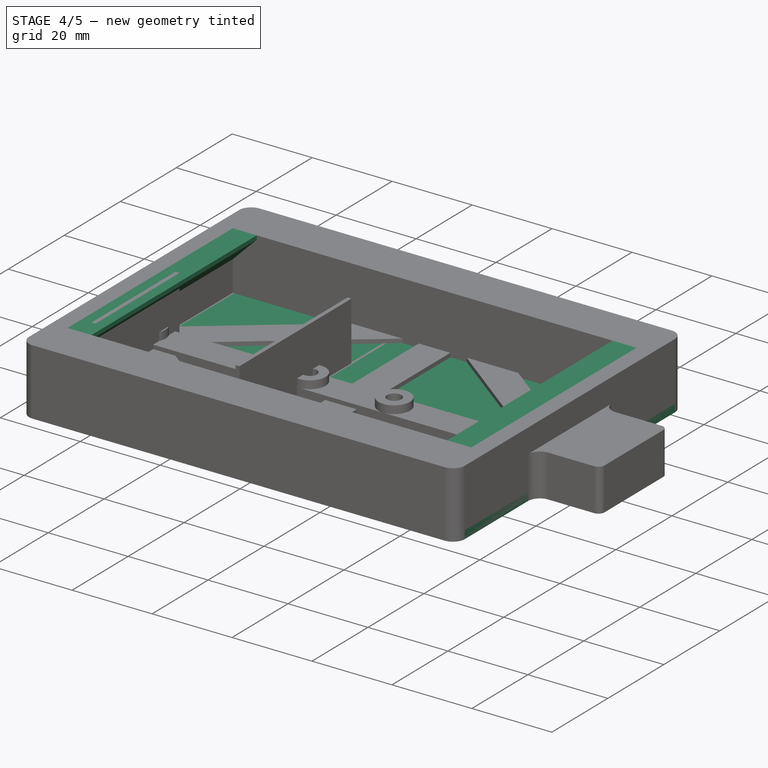
[diagram: stage 4 of 5 — iso view after this stage's code; geometry added in this stage tinted green]
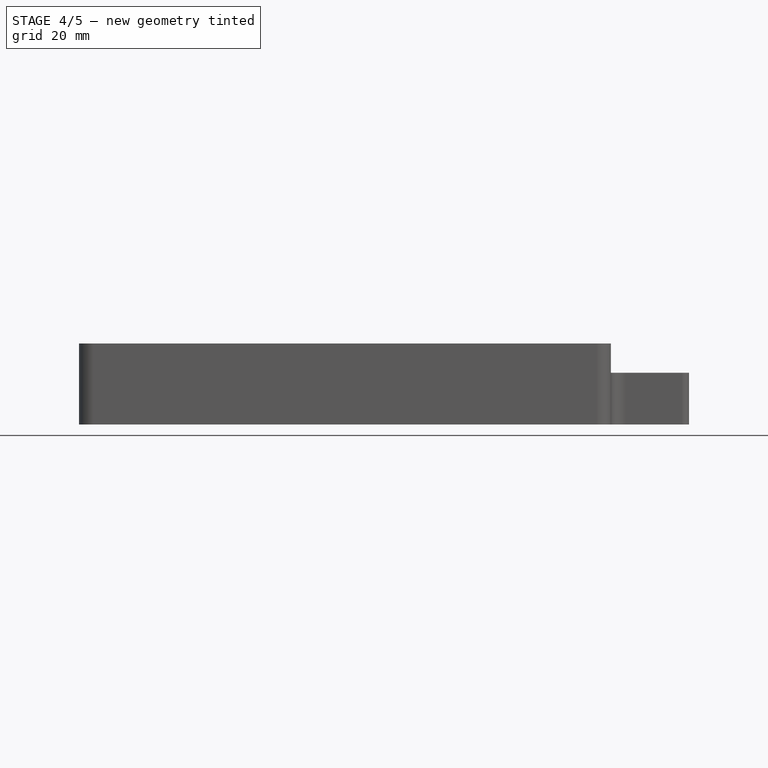
[diagram: stage 4 of 5 — front view after this stage's code; geometry added in this stage tinted green]
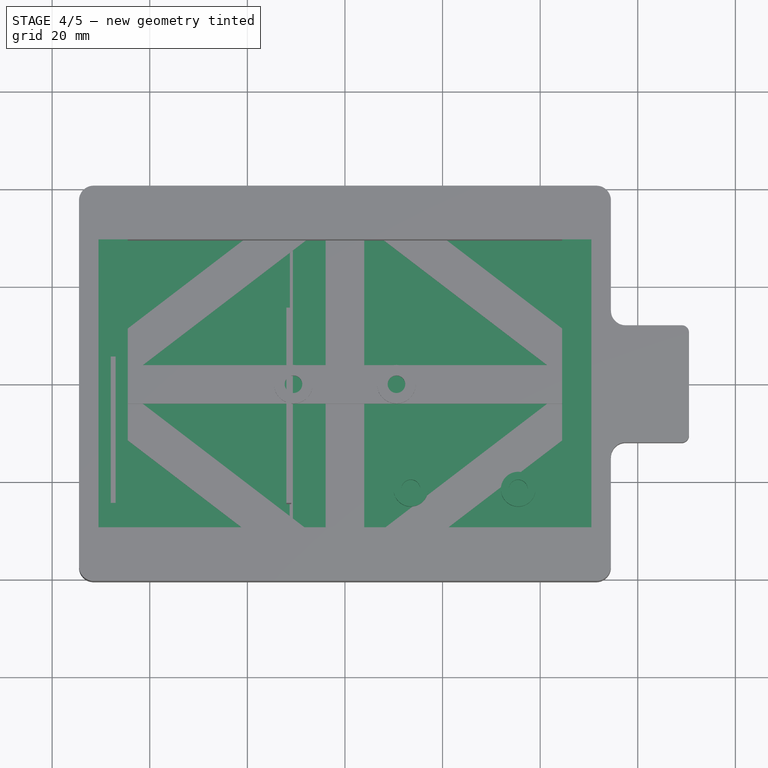
[diagram: stage 4 of 5 — top view after this stage's code; geometry added in this stage tinted green]
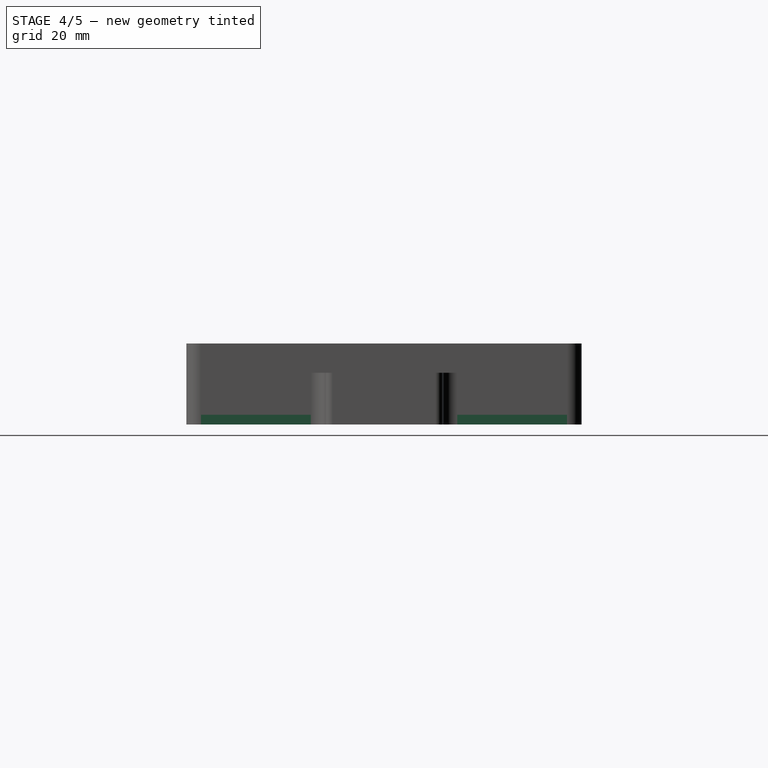
[diagram: stage 4 of 5 — right view after this stage's code; geometry added in this stage tinted green]
FEATURE [Sketcher::SketchObject] Sketch004  label="LidMainScrewholesSketch"
  ExternalGeometry = -> [Sketch]
  FullyConstrained = true
  MapMode = 5
  Placement = pos=(0,0,16.6) rot=(0,0,1;0rad)
  Support = -> [DatumPlane]
  expr: Constraints[17] = <<RAKSheet>>.BoxLidMainScrewholeDia
  expr: Constraints[18] = <<RAKSheet>>.StrapHoleDistance
  expr: Constraints[19] = <<RAKSheet>>.StrapHoleDistance
  expr: Constraints[20] = <<RAKSheet>>.BoxLidMainScrewholeDia / 2 + <<RAKSheet>>.WallThicknessNexttoLidMainHoles
  expr: Constraints[21] = <<RAKSheet>>.BoxLidMainScrewholeDia / 2 + <<RAKSheet>>.WallThicknessNexttoLidMainHoles
  expr: Constraints[22] = <<RAKSheet>>.BoxLidMainScrewholeDia / 2 + <<RAKSheet>>.WallThicknessNexttoLidMainHoles
  expr: Constraints[23] = <<RAKSheet>>.BoxLidMainScrewholeDia / 2 + <<RAKSheet>>.WallThicknessNexttoLidMainHoles
  expr: Constraints[29] = <<RAKSheet>>.BoxLidMainScrewholeDia
  sketch-geometry (10):
    g0: Circle CenterX=-50.55 CenterY=36.55 CenterZ=0 NormalX=0 NormalY=0 NormalZ=1 AngleXU=0 Radius=1.95
    g1: Circle CenterX=-10.55 CenterY=36.55 CenterZ=0 NormalX=0 NormalY=0 NormalZ=1 AngleXU=0 Radius=1.95
    g2: Circle CenterX=10.55 CenterY=36.55 CenterZ=0 NormalX=0 NormalY=0 NormalZ=1 AngleXU=0 Radius=1.95
    g3: Circle CenterX=50.55 CenterY=36.55 CenterZ=0 NormalX=0 NormalY=0 NormalZ=1 AngleXU=0 Radius=1.95
    g4: Circle CenterX=50.55 CenterY=-36.55 CenterZ=0 NormalX=0 NormalY=0 NormalZ=1 AngleXU=0 Radius=1.95
    g5: Circle CenterX=10.55 CenterY=-36.55 CenterZ=0 NormalX=0 NormalY=0 NormalZ=1 AngleXU=0 Radius=1.95
    g6: Circle CenterX=-10.55 CenterY=-36.55 CenterZ=0 NormalX=0 NormalY=0 NormalZ=1 AngleXU=0 Radius=1.95
    g7: Circle CenterX=-50.55 CenterY=-36.55 CenterZ=0 NormalX=0 NormalY=0 NormalZ=1 AngleXU=0 Radius=1.95
    g8: Circle CenterX=-50.55 CenterY=0 CenterZ=0 NormalX=0 NormalY=0 NormalZ=1 AngleXU=0 Radius=1.95
    g9: Circle CenterX=50.55 CenterY=0 CenterZ=0 NormalX=0 NormalY=0 NormalZ=1 AngleXU=0 Radius=1.95
  constraints (24):
    c: Vertical(g0,g7)
    c: Vertical(g1,g6)
    c: Vertical(g2,g5)
    c: Vertical(g3,g4)
    c: Horizontal(g4,g5)
    c: Horizontal(g5,g6)
    c: Horizontal(g6,g7)
    c: Horizontal(g0,g1)
    c: Horizontal(g1,g2)
    c: Horizontal(g2,g3)
    c: Equal(g0, g1-g7) x7
    c: Diameter(g0) = 3.9
    c: DistanceX(g0,g1) = 40
    c: DistanceX(g2,g3) = 40
    c: DistanceY(g0,g-5) = 3.95
    c: DistanceX(g-3,g0) = 3.95
    c: DistanceY(g-4,g7) = 3.95
    c: DistanceX(g3,g-6) = 3.95
    c: PointOnObject(g8,g-1)
    c: PointOnObject(g9,g-1)
    c: Vertical(g8,g0)
    c: Vertical(g9,g3)
    c: Equal(g8,g9)
    c: Diameter(g8) = 3.9
FEATURE [Sketcher::SketchObject] Sketch005  label="PCBMountSketch"
  ExternalGeometry = -> [Sketch]
  FullyConstrained = true
  MapMode = 5
  Support = -> [XY_Plane]
  expr: Constraints[3] = <<RAKSheet>>.PCBMountHoleDia
  expr: Constraints[5] = <<RAKSheet>>.PCBMountDIa
  expr: Constraints[7] = <<RAKSheet>>.PCBMountHoleDistance
  expr: Constraints[9] = <<RAKSheet>>.PCBMountHoleFromEdge
  sketch-geometry (4):
    g0: Circle CenterX=13.5 CenterY=-21.5 CenterZ=0 NormalX=0 NormalY=0 NormalZ=1 AngleXU=0 Radius=1.95
    g1: Circle CenterX=13.5 CenterY=-21.5 CenterZ=0 NormalX=0 NormalY=0 NormalZ=1 AngleXU=0 Radius=3.55
    g2: Circle CenterX=35.5 CenterY=-21.5 CenterZ=0 NormalX=0 NormalY=0 NormalZ=1 AngleXU=0 Radius=1.95
    g3: Circle CenterX=35.5 CenterY=-21.5 CenterZ=0 NormalX=0 NormalY=0 NormalZ=1 AngleXU=0 Radius=3.55
  constraints (10):
    c: Coincident(g1,g0)
    c: Coincident(g3,g2)
    c: Equal(g0,g2)
    c: Diameter(g0) = 3.9
    c: Equal(g1,g3)
    c: Diameter(g1) = 7.1
    c: Horizontal(g0,g2)
    c: DistanceX(g0,g2) = 22
    c: DistanceY(g-4,g2) = 8
    c: DistanceX(g2,g-4) = 15
FEATURE [PartDesign::Pad] Pad002  label="PCBMount"
  BaseFeature = -> Pocket001
  Direction = (0,0,1)
  Length = 6.1
  Length2 = 10
  Profile = -> Sketch005
  ReferenceAxis = -> Sketch005 [N_Axis]
  Type = 0
  expr: Length = <<RAKSheet>>.PCBMountHeight + <<RAKSheet>>.BoxTopThickness
FEATURE [Sketcher::SketchObject] Sketch006  label="SealPocketSketch"
  FullyConstrained = true
  MapMode = 5
  Placement = pos=(0,0,16.6) rot=(0,0,1;0rad)
  Support = -> [DatumPlane]
  expr: Constraints[10] = <<RAKSheet>>.BoxWidth - 2 * <<RAKSheet>>.BoxWallThicknessAlongLength
  expr: Constraints[34] = <<RAKSheet>>.SealWidth
  expr: Constraints[39] = (<<RAKSheet>>.BoxWallThickness - <<RAKSheet>>.SealWidth) / 2
  expr: Constraints[44] = (<<RAKSheet>>.BoxWallThickness - <<RAKSheet>>.SealWidth) / 2
  expr: Constraints[45] = <<RAKSheet>>.SealCornerRadius
  expr: Constraints[9] = <<RAKSheet>>.BoxLength - 20 mm
  sketch-geometry (20):
    g0: LineSegment StartX=-44.5 StartY=29.5 StartZ=0 EndX=44.5 EndY=29.5 EndZ=0
    g1: LineSegment StartX=44.5 StartY=29.5 StartZ=0 EndX=44.5 EndY=-29.5 EndZ=0
    g2: LineSegment StartX=44.5 StartY=-29.5 StartZ=0 EndX=-44.5 EndY=-29.5 EndZ=0
    g3: LineSegment StartX=-44.5 StartY=-29.5 StartZ=0 EndX=-44.5 EndY=29.5 EndZ=0
    g4: LineSegment StartX=-43.5 StartY=31 StartZ=0 EndX=43.5 EndY=31 EndZ=0
    g5: LineSegment StartX=46 StartY=28.5 StartZ=0 EndX=46 EndY=-28.5 EndZ=0
    g6: LineSegment StartX=43.5 StartY=-31 StartZ=0 EndX=-43.5 EndY=-31 EndZ=0
    g7: LineSegment StartX=-46 StartY=-28.5 StartZ=0 EndX=-46 EndY=28.5 EndZ=0
    g8: ArcOfCircle CenterX=-43.5 CenterY=28.5 CenterZ=0 NormalX=0 NormalY=0 NormalZ=1 AngleXU=0 Radius=2.5 StartAngle=1.5708 EndAngle=3.14159
    g9: ArcOfCircle CenterX=-43.5 CenterY=-28.5 CenterZ=0 NormalX=0 NormalY=0 NormalZ=1 AngleXU=0 Radius=2.5 StartAngle=3.14159 EndAngle=4.71239
    g10: ArcOfCircle CenterX=43.5 CenterY=28.5 CenterZ=0 NormalX=0 NormalY=0 NormalZ=1 AngleXU=0 Radius=2.5 StartAngle=-9e-16 EndAngle=1.5708
    g11: ArcOfCircle CenterX=43.5 CenterY=-28.5 CenterZ=0 NormalX=0 NormalY=0 NormalZ=1 AngleXU=0 Radius=2.5 StartAngle=4.71239 EndAngle=6.28319
    g12: LineSegment StartX=-43.5 StartY=32 StartZ=0 EndX=43.5 EndY=32 EndZ=0
    g13: LineSegment StartX=47 StartY=28.5 StartZ=0 EndX=47 EndY=-28.5 EndZ=0
    g14: LineSegment StartX=43.5 StartY=-32 StartZ=0 EndX=-43.5 EndY=-32 EndZ=0
    g15: LineSegment StartX=-47 StartY=-28.5 StartZ=0 EndX=-47 EndY=28.5 EndZ=0
    g16: ArcOfCircle CenterX=-43.5 CenterY=28.5 CenterZ=0 NormalX=0 NormalY=0 NormalZ=1 AngleXU=0 Radius=3.5 StartAngle=1.5708 EndAngle=3.14159
    g17: ArcOfCircle CenterX=43.5 CenterY=28.5 CenterZ=0 NormalX=0 NormalY=0 NormalZ=1 AngleXU=0 Radius=3.5 StartAngle=0 EndAngle=1.5708
    g18: ArcOfCircle CenterX=43.5 CenterY=-28.5 CenterZ=0 NormalX=0 NormalY=0 NormalZ=1 AngleXU=0 Radius=3.5 StartAngle=4.71239 EndAngle=6.28319
    g19: ArcOfCircle CenterX=-43.5 CenterY=-28.5 CenterZ=0 NormalX=0 NormalY=0 NormalZ=1 AngleXU=0 Radius=3.5 StartAngle=3.14159 EndAngle=4.71239
  constraints (46):
    c: Coincident(g0,g1)
    c: Coincident(g1,g2)
    c: Coincident(g2,g3)
    c: Coincident(g3,g0)
    c: Horizontal(g0)
    c: Horizontal(g2)
    c: Vertical(g1)
    c: Vertical(g3)
    c: Symmetric(g0,g1,g-1)
    c: DistanceX(g0,g0) = 89
    c: DistanceY(g1,g0) = 59
    c: Horizontal(g4)
    c: Horizontal(g6)
    c: Vertical(g5)
    c: Vertical(g7)
    c: Tangent(g4,g8) = 1.5708
    c: Tangent(g7,g8) = 1.5708
    c: Tangent(g7,g9) = 1.5708
    c: Tangent(g6,g9) = 1.5708
    c: Tangent(g4,g10) = 1.5708
    c: Tangent(g5,g10) = 1.5708
    c: Tangent(g5,g11) = 1.5708
    c: Tangent(g6,g11) = 1.5708
    c: Horizontal(g12)
    c: Horizontal(g14)
    c: Vertical(g13)
    c: Tangent(g12,g16) = 1.5708
    c: Tangent(g15,g16) = 1.5708
    c: Tangent(g12,g17) = 1.5708
    c: Tangent(g13,g17) = 1.5708
    c: Tangent(g13,g18) = 1.5708
    c: Tangent(g14,g18) = 1.5708
    c: Tangent(g14,g19) = 1.5708
    c: Tangent(g15,g19) = 1.5708
    c: DistanceY(g4,g12) = 1
    c: Coincident(g8,g16)
    c: Coincident(g17,g10)
    c: Coincident(g11,g18)
    c: Coincident(g9,g19)
    c: DistanceY(g0,g4) = 1.5
    c: Equal(g8,g9)
    c: Equal(g8,g11)
    c: Equal(g8,g10)
    c: Symmetric(g10,g9,g-1)
    c: DistanceX(g7,g0) = 1.5
    c: Radius(g8) = 2.5
FEATURE [Sketcher::SketchObject] Sketch008  label="LidBaseSketch"
  FullyConstrained = true
  MapMode = 5
  Support = -> [XY_Plane001]
  expr: Constraints[15] = <<RAKSheet>>.BoxCornerRadius
  expr: Constraints[17] = <<RAKSheet>>.BoxLength
  expr: Constraints[18] = <<RAKSheet>>.BoxWidth
  expr: Constraints[36] = <<RAKSheet>>.LidMainScrewHoleDia
  expr: Constraints[37] = <<RAKSheet>>.BoxLidMainScrewholeDia / 2 + <<RAKSheet>>.WallThicknessNexttoLidMainHoles
  expr: Constraints[38] = <<RAKSheet>>.BoxLidMainScrewholeDia / 2 + <<RAKSheet>>.WallThicknessNexttoLidMainHoles
  expr: Constraints[39] = <<RAKSheet>>.StrapHoleDistance
  expr: Constraints[40] = <<RAKSheet>>.StrapHoleDistance
  expr: Constraints[41] = <<RAKSheet>>.BoxLidMainScrewholeDia / 2 + <<RAKSheet>>.WallThicknessNexttoLidMainHoles
  expr: Constraints[42] = <<RAKSheet>>.BoxLidMainScrewholeDia / 2 + <<RAKSheet>>.WallThicknessNexttoLidMainHoles
  sketch-geometry (16):
    g0: LineSegment StartX=-51.5 StartY=40.5 StartZ=0 EndX=51.5 EndY=40.5 EndZ=0
    g1: LineSegment StartX=54.5 StartY=37.5 StartZ=0 EndX=54.5 EndY=-37.5 EndZ=0
    g2: LineSegment StartX=51.5 StartY=-40.5 StartZ=0 EndX=-51.5 EndY=-40.5 EndZ=0
    g3: LineSegment StartX=-54.5 StartY=-37.5 StartZ=0 EndX=-54.5 EndY=37.5 EndZ=0
    g4: ArcOfCircle CenterX=-51.5 CenterY=37.5 CenterZ=0 NormalX=0 NormalY=0 NormalZ=1 AngleXU=0 Radius=3 StartAngle=1.5708 EndAngle=3.14159
    g5: ArcOfCircle CenterX=51.5 CenterY=37.5 CenterZ=0 NormalX=0 NormalY=0 NormalZ=1 AngleXU=0 Radius=3 StartAngle=0 EndAngle=1.5708
    g6: ArcOfCircle CenterX=51.5 CenterY=-37.5 CenterZ=0 NormalX=0 NormalY=0 NormalZ=1 AngleXU=0 Radius=3 StartAngle=4.71239 EndAngle=6.28319
    g7: ArcOfCircle CenterX=-51.5 CenterY=-37.5 CenterZ=0 NormalX=0 NormalY=0 NormalZ=1 AngleXU=0 Radius=3 StartAngle=3.14159 EndAngle=4.71239
    g8: Circle CenterX=-50.55 CenterY=36.55 CenterZ=0 NormalX=0 NormalY=0 NormalZ=1 AngleXU=0 Radius=1.75
    g9: Circle CenterX=-10.55 CenterY=36.55 CenterZ=0 NormalX=0 NormalY=0 NormalZ=1 AngleXU=0 Radius=1.75
    g10: Circle CenterX=10.55 CenterY=36.55 CenterZ=0 NormalX=0 NormalY=0 NormalZ=1 AngleXU=0 Radius=1.75
    g11: Circle CenterX=50.55 CenterY=36.55 CenterZ=0 NormalX=0 NormalY=0 NormalZ=1 AngleXU=0 Radius=1.75
    g12: Circle CenterX=-50.55 CenterY=-36.55 CenterZ=0 NormalX=0 NormalY=0 NormalZ=1 AngleXU=0 Radius=1.75
    g13: Circle CenterX=-10.55 CenterY=-36.55 CenterZ=0 NormalX=0 NormalY=0 NormalZ=1 AngleXU=0 Radius=1.75
    g14: Circle CenterX=10.55 CenterY=-36.55 CenterZ=0 NormalX=0 NormalY=0 NormalZ=1 AngleXU=0 Radius=1.75
    g15: Circle CenterX=50.55 CenterY=-36.55 CenterZ=0 NormalX=0 NormalY=0 NormalZ=1 AngleXU=0 Radius=1.75
  constraints (43):
    c: Horizontal(g0)
    c: Horizontal(g2)
    c: Vertical(g1)
    c: Vertical(g3)
    c: Tangent(g3,g4) = 1.5708
    c: Tangent(g0,g4) = 1.5708
    c: Tangent(g0,g5) = 1.5708
    c: Tangent(g1,g5) = 1.5708
    c: Tangent(g1,g6) = 1.5708
    c: Tangent(g2,g6) = 1.5708
    c: Tangent(g3,g7) = 1.5708
    c: Tangent(g2,g7) = 1.5708
    c: Equal(g4,g5)
    c: Equal(g4,g6)
    c: Equal(g4,g7)
    c: Radius(g4) = 3
    c: Symmetric(g4,g6,g-1)
    c: DistanceX(g3,g1) = 109
    c: DistanceY(g2,g0) = 81
    c: Horizontal(g11,g10)
    c: Horizontal(g10,g9)
    c: Horizontal(g9,g8)
    c: Horizontal(g12,g13)
    c: Horizontal(g13,g14)
    c: Horizontal(g14,g15)
    c: Vertical(g11,g15)
    c: Vertical(g10,g14)
    c: Vertical(g9,g13)
    c: Vertical(g8,g12)
    c: Equal(g8,g9)
    c: Equal(g8,g10)
    c: Equal(g8,g11)
    c: Equal(g8,g15)
    c: Equal(g8,g14)
    c: Equal(g8,g13)
    c: Equal(g8,g12)
    c: Diameter(g8) = 3.5
    c: DistanceY(g8,g0) = 3.95
    c: DistanceX(g3,g8) = 3.95
    c: DistanceX(g8,g9) = 40
    c: DistanceX(g10,g11) = 40
    c: DistanceX(g11,g1) = 3.95
    c: DistanceY(g2,g12) = 3.95
FEATURE [PartDesign::Pad] Pad004  label="LidBase"
  Direction = (0,0,1)
  Length = 2
  Length2 = 10
  Profile = -> Sketch008
  ReferenceAxis = -> Sketch008 [N_Axis]
  Type = 0
  expr: Length = <<RAKSheet>>.LidHeight
FEATURE [PartDesign::Body] Body001  label="Lid"
  Group = -> [Sketch008,Pad004,Sketch009,Hole]
  Origin = -> Origin001
  Placement = pos=(0,0,42) rot=(1,0,0;3.14159rad)
  Tip = -> Hole
FEATURE [Sketcher::SketchObject] Sketch010  label="LidSmallScrewMountSideSketch"
  FullyConstrained = true
  MapMode = 5
  Placement = pos=(0,0,0) rot=(1,0,0;1.5708rad)
  Support = -> [XZ_Plane]
  expr: Constraints[19] = <<RAKSheet>>.BoxLidSmallHoleLength
  expr: Constraints[20] = <<RAKSheet>>.BoxInnerDepth - <<RAKSheet>>.GPSHeight
  expr: Constraints[31] = <<RAKSheet>>.BoxInnerDepth - <<RAKSheet>>.GPSHeight
  expr: Constraints[32] = <<RAKSheet>>.BoxLidSmallHoleLength
  expr: Constraints[8] = <<RAKSheet>>.BoxHeight
  expr: Constraints[9] = <<RAKSheet>>.BoxLength - <<RAKSheet>>.BoxWallThickness * 2
  sketch-geometry (12):
    g0: LineSegment StartX=-50.5 StartY=16.6 StartZ=0 EndX=50.5 EndY=16.6 EndZ=0
    g1: LineSegment StartX=50.5 StartY=16.6 StartZ=0 EndX=50.5 EndY=0 EndZ=0
    g2: LineSegment StartX=50.5 StartY=0 StartZ=0 EndX=-50.5 EndY=0 EndZ=0
    g3: LineSegment StartX=-50.5 StartY=0 StartZ=0 EndX=-50.5 EndY=16.6 EndZ=0
    g4: LineSegment StartX=44.5 StartY=16.6 StartZ=0 EndX=50.5 EndY=16.6 EndZ=0
    g5: LineSegment StartX=50.5 StartY=16.6 StartZ=0 EndX=50.5 EndY=9.6 EndZ=0
    g6: LineSegment StartX=50.5 StartY=9.6 StartZ=0 EndX=44.5 EndY=15.6 EndZ=0
    g7: LineSegment StartX=44.5 StartY=15.6 StartZ=0 EndX=44.5 EndY=16.6 EndZ=0
    g8: LineSegment StartX=-50.5 StartY=16.6 StartZ=0 EndX=-44.5 EndY=16.6 EndZ=0
    g9: LineSegment StartX=-44.5 StartY=16.6 StartZ=0 EndX=-44.5 EndY=15.6 EndZ=0
    g10: LineSegment StartX=-44.5 StartY=15.6 StartZ=0 EndX=-50.5 EndY=9.6 EndZ=0
    g11: LineSegment StartX=-50.5 StartY=9.6 StartZ=0 EndX=-50.5 EndY=16.6 EndZ=0
  constraints (33):
    c: Coincident(g0,g1)
    c: Coincident(g1,g2)
    c: Coincident(g2,g3)
    c: Coincident(g3,g0)
    c: Horizontal(g0)
    c: Horizontal(g2)
    c: Vertical(g1)
    c: Vertical(g3)
    c: DistanceY(g1,g1) = 16.6
    c: DistanceX(g0,g0) = 101
    c: Symmetric(g1,g2,g-1)
    c: PointOnObject(g4,g0)
    c: Coincident(g4,g0)
    c: Coincident(g5,g4)
    c: PointOnObject(g5,g1)
    c: Coincident(g6,g5)
    c: Coincident(g7,g6)
    c: Coincident(g7,g4)
    c: Vertical(g7)
    c: DistanceX(g4,g4) = 6
    c: DistanceY(g5,g5) = 7
    c: Angle(g5,g6) = 0.785398
    c: Coincident(g8,g0)
    c: PointOnObject(g8,g0)
    c: Coincident(g9,g8)
    c: Vertical(g9)
    c: PointOnObject(g10,g3)
    c: Coincident(g11,g10)
    c: Coincident(g11,g8)
    c: Angle(g10,g11) = 0.785398
    c: Coincident(g9,g10)
    c: DistanceY(g11,g11) = 7
    c: DistanceX(g8,g8) = 6
FEATURE [PartDesign::Pad] Pad005  label="LidSmallScrewMountSide"
  BaseFeature = -> Pad002
  Direction = (0,-1,-2e-16)
  Length = 59
  Length2 = 10
  Midplane = true
  Profile = -> Sketch010
  ReferenceAxis = -> Sketch010 [N_Axis]
  Type = 0
  expr: Length = <<RAKSheet>>.BoxWidth - 2 * <<RAKSheet>>.BoxWallThicknessAlongLength
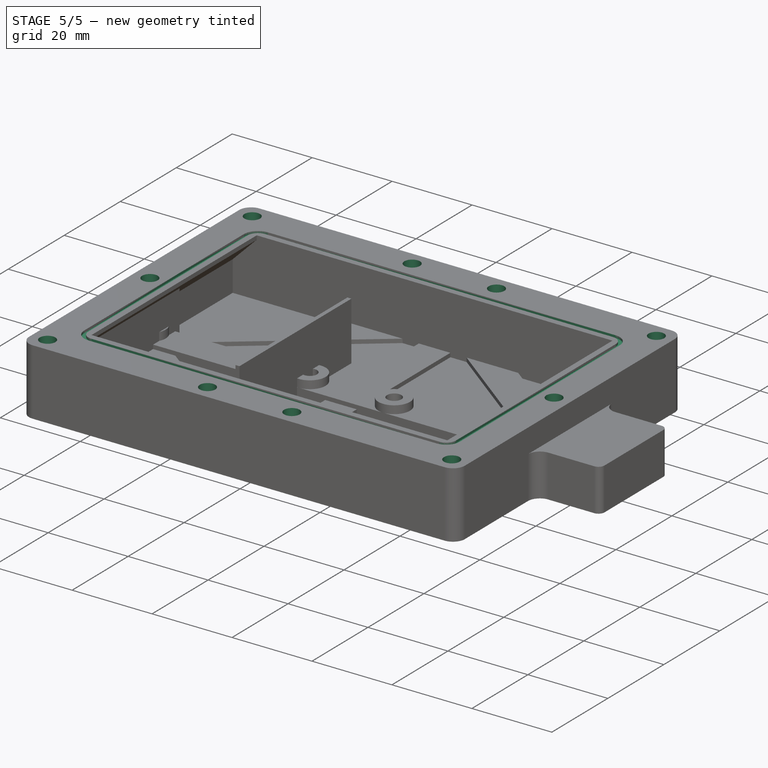
[diagram: stage 5 of 5 — iso view after this stage's code; geometry added in this stage tinted green]
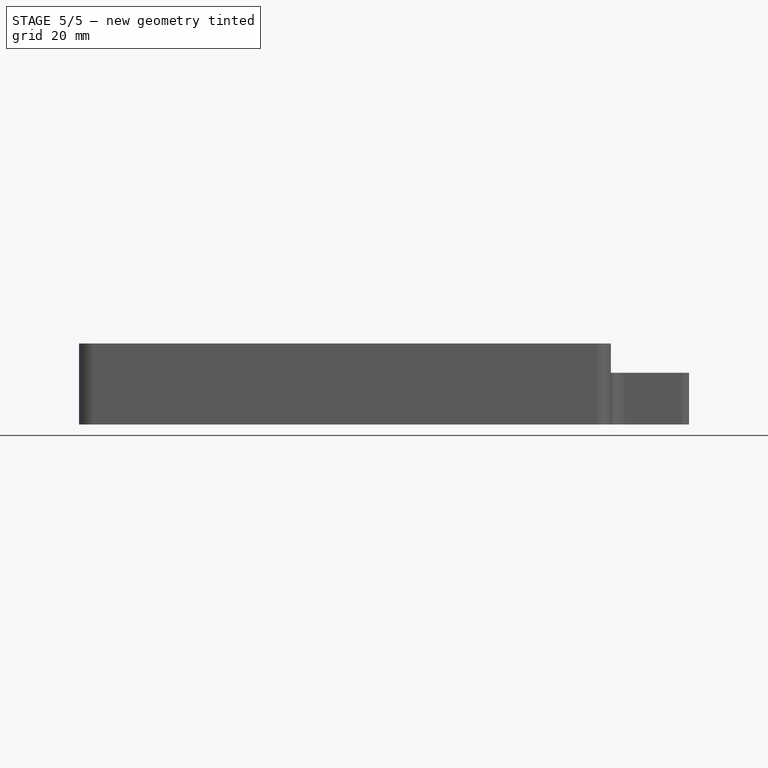
[diagram: stage 5 of 5 — front view after this stage's code; geometry added in this stage tinted green]
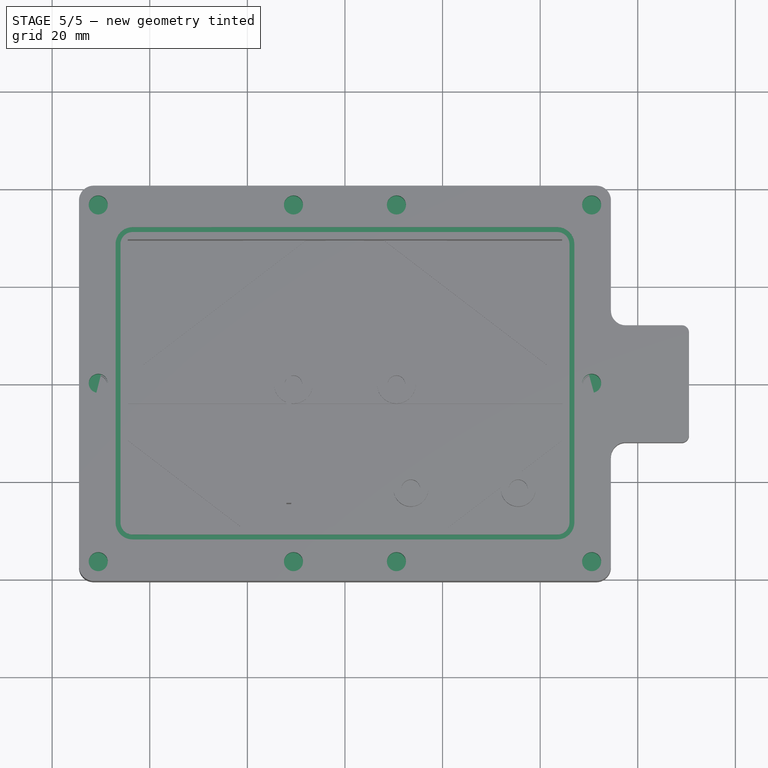
[diagram: stage 5 of 5 — top view after this stage's code; geometry added in this stage tinted green]
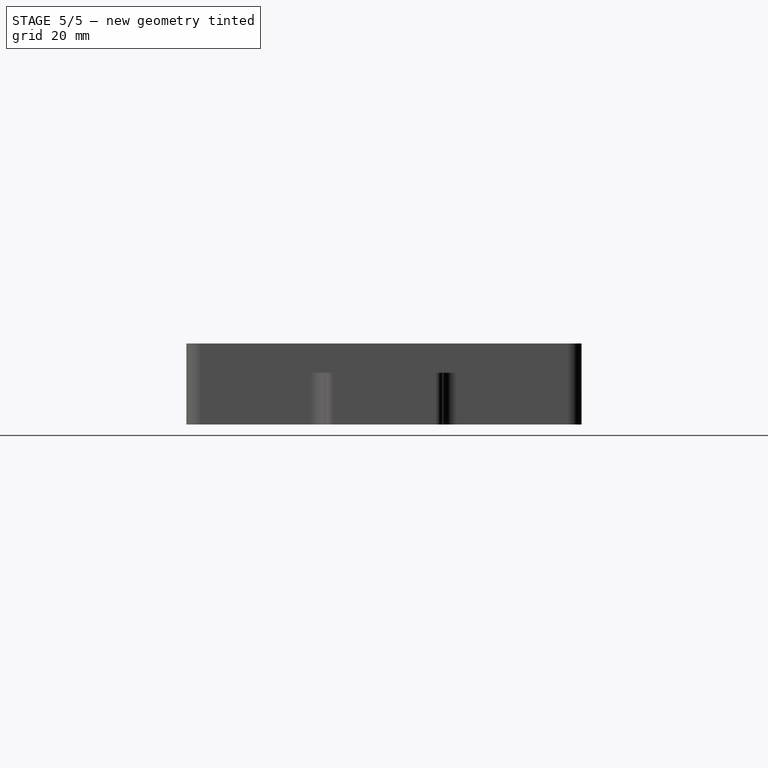
[diagram: stage 5 of 5 — right view after this stage's code; geometry added in this stage tinted green]
FEATURE [Sketcher::SketchObject] Sketch009  label="LIdCountersunkHolesSketch"
  FullyConstrained = true
  MapMode = 5
  Support = -> [XY_Plane001]
  expr: Constraints[13] = <<RAKSheet>>.BoxLength
  expr: Constraints[14] = <<RAKSheet>>.BoxLidSmallHoleWidth
  expr: Constraints[15] = <<RAKSheet>>.BoxLidMainScrewholeDia / 2 + <<RAKSheet>>.WallThicknessNexttoLidMainHoles
  expr: Constraints[16] = <<RAKSheet>>.BoxLidMainScrewholeDia / 2 + <<RAKSheet>>.WallThicknessNexttoLidMainHoles
  sketch-geometry (6):
    g0: Circle CenterX=-50.55 CenterY=0 CenterZ=0 NormalX=0 NormalY=0 NormalZ=1 AngleXU=0 Radius=1.5
    g1: Circle CenterX=50.55 CenterY=0 CenterZ=0 NormalX=0 NormalY=0 NormalZ=1 AngleXU=0 Radius=1.5
    g2: LineSegment StartX=-54.5 StartY=3.55 StartZ=0 EndX=54.5 EndY=3.55 EndZ=0
    g3: LineSegment StartX=54.5 StartY=3.55 StartZ=0 EndX=54.5 EndY=-3.55 EndZ=0
    g4: LineSegment StartX=54.5 StartY=-3.55 StartZ=0 EndX=-54.5 EndY=-3.55 EndZ=0
    g5: LineSegment StartX=-54.5 StartY=-3.55 StartZ=0 EndX=-54.5 EndY=3.55 EndZ=0
  constraints (17):
    c: PointOnObject(g0,g-1)
    c: PointOnObject(g1,g-1)
    c: Equal(g0,g1)
    c: Diameter(g0) = 3
    c: Coincident(g2,g3)
    c: Coincident(g3,g4)
    c: Coincident(g4,g5)
    c: Coincident(g5,g2)
    c: Horizontal(g2)
    c: Horizontal(g4)
    c: Vertical(g3)
    c: Vertical(g5)
    c: Symmetric(g2,g3,g-1)
    c: DistanceX(g2,g2) = 109
    c: DistanceY(g3,g3) = 7.1
    c: DistanceX(g1,g2) = 3.95
    c: DistanceX(g2,g0) = 3.95
FEATURE [PartDesign::Hole] Hole  label="LIdCountersunkHoles"
  BaseFeature = -> Pad004
  CustomThreadClearance = 0
  Depth = 25
  DepthType = 0
  Diameter = 3.6
  DrillForDepth = false
  DrillPoint = 1
  DrillPointAngle = 118
  HoleCutCountersinkAngle = 90
  HoleCutCustomValues = false
  HoleCutDepth = 0
  HoleCutDiameter = 6.7
  HoleCutType = 5
  ModelThread = false
  Profile = -> Sketch009
  Reversed = true
  Tapered = false
  TaperedAngle = 90
  ThreadClass = 0
  ThreadDepth = 25
  ThreadDepthType = 0
  ThreadDirection = 0
  ThreadFit = 2
  ThreadSize = 9
  ThreadType = 1
  Threaded = false
  UseCustomThreadClearance = false
FEATURE [PartDesign::Pocket] Pocket003  label="SealPocket"
  BaseFeature = -> Pad005
  Direction = (0,0,-1)
  Length = 0.6
  Length2 = 5
  Profile = -> Sketch006
  ReferenceAxis = -> Sketch006 [N_Axis]
  Type = 0
  expr: Length = <<RAKSheet>>.SealDepth
FEATURE [PartDesign::Pocket] Pocket002  label="LidMainScrewHoles"
  BaseFeature = -> Pocket003
  Direction = (0,0,-1)
  Length = 6.5
  Length2 = 5
  Profile = -> Sketch004
  ReferenceAxis = -> Sketch004 [N_Axis]
  Type = 0
  expr: Length = <<RAKSheet>>.BoxLidMainScrewholeDepth
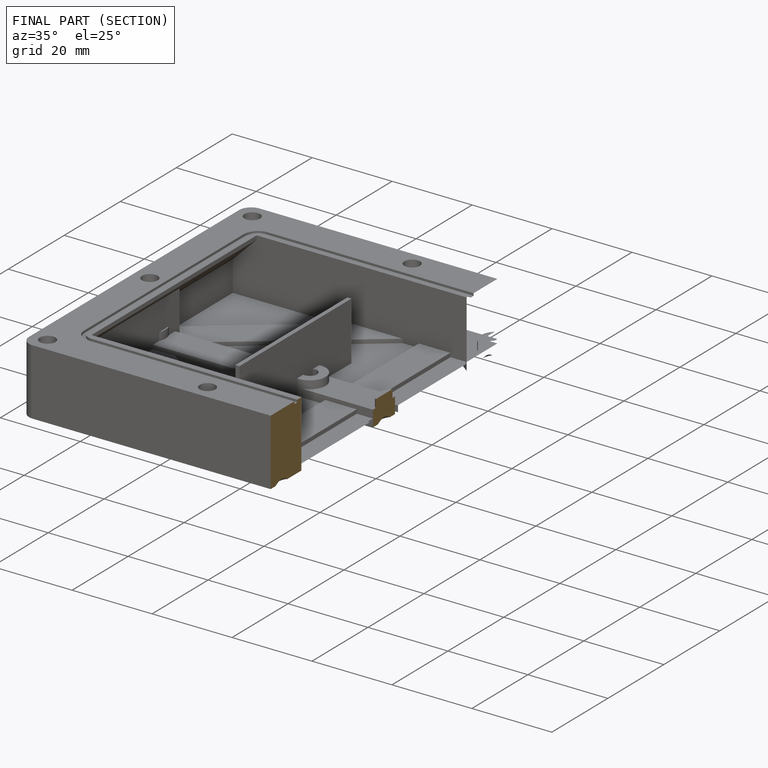
[diagram: finished part — half-section view (interior)]
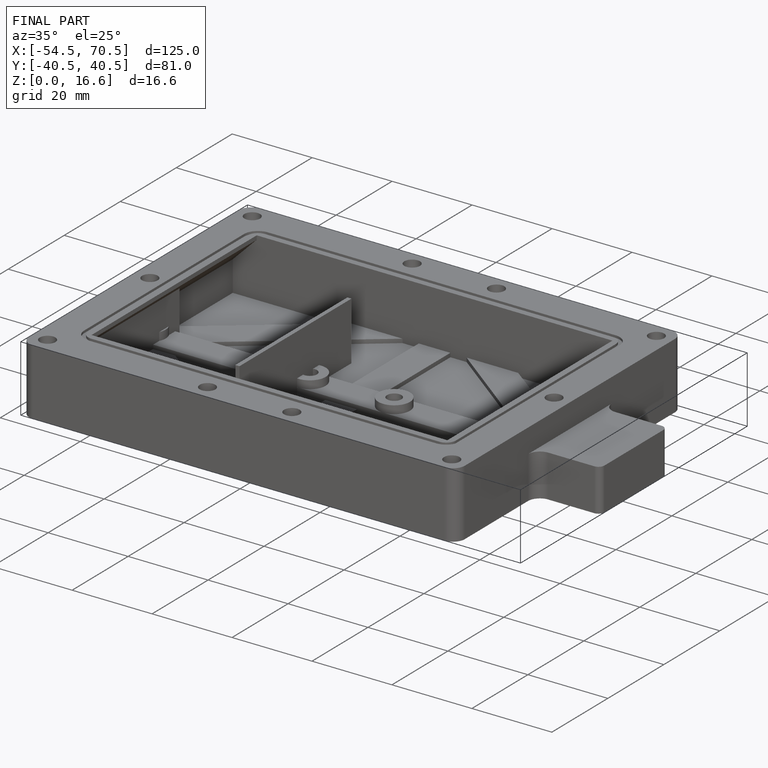
[diagram: finished part — iso view with bounding-box wireframe]
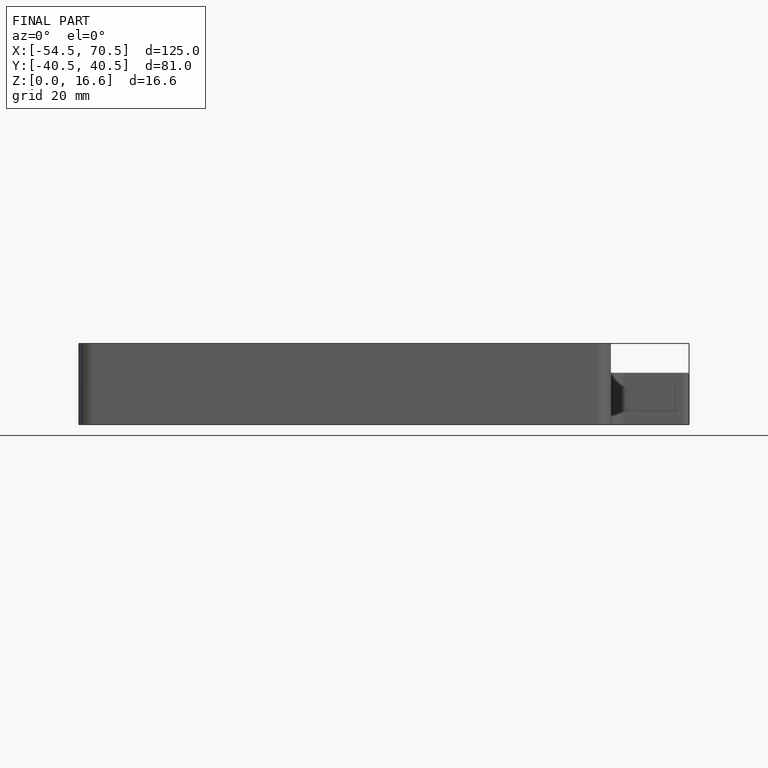
[diagram: finished part — front view with bounding-box wireframe]
